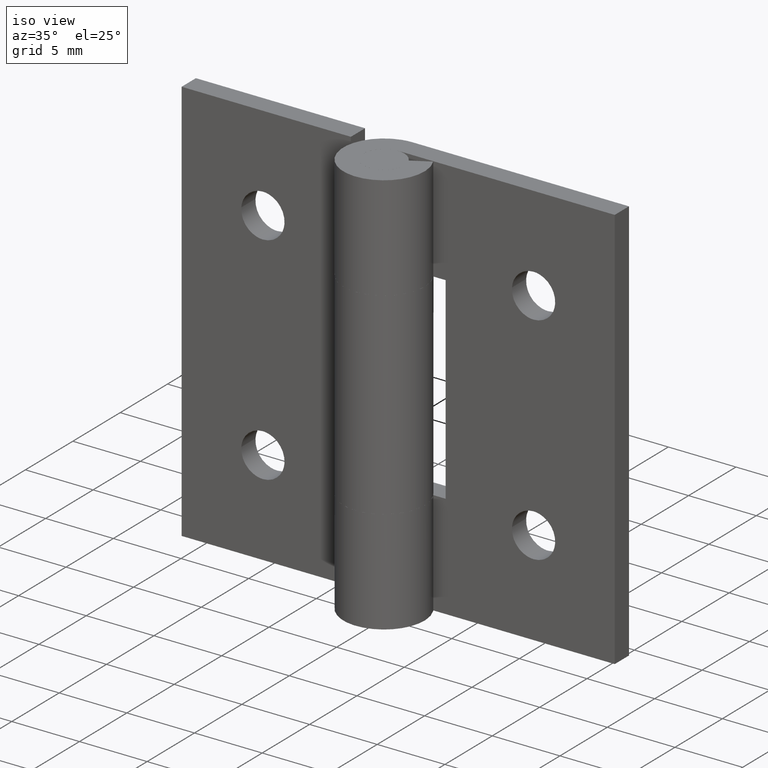
[diagram: clean part render]
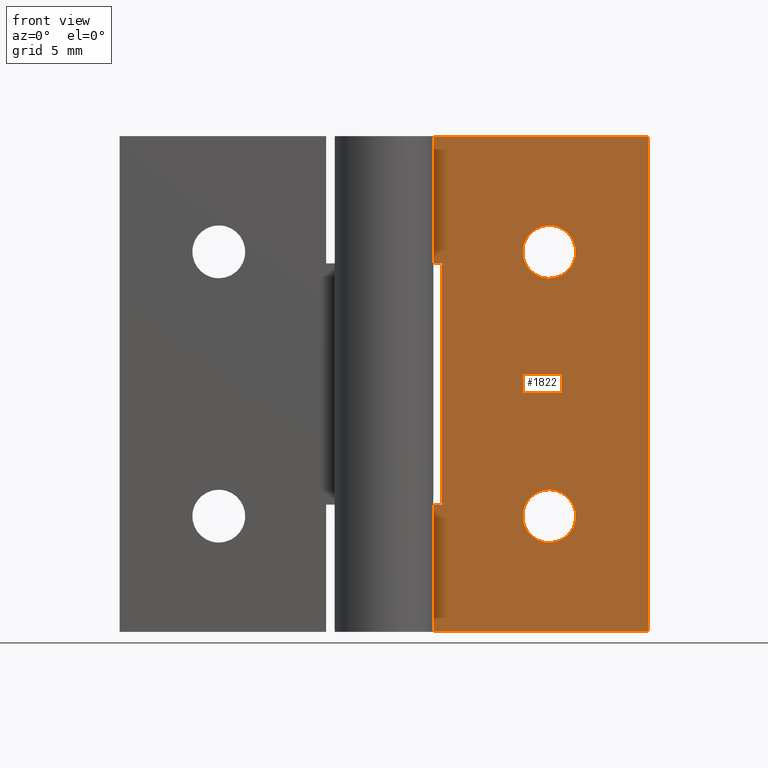
[diagram: tour spotlight — one face highlighted and labeled with its STEP entity id]
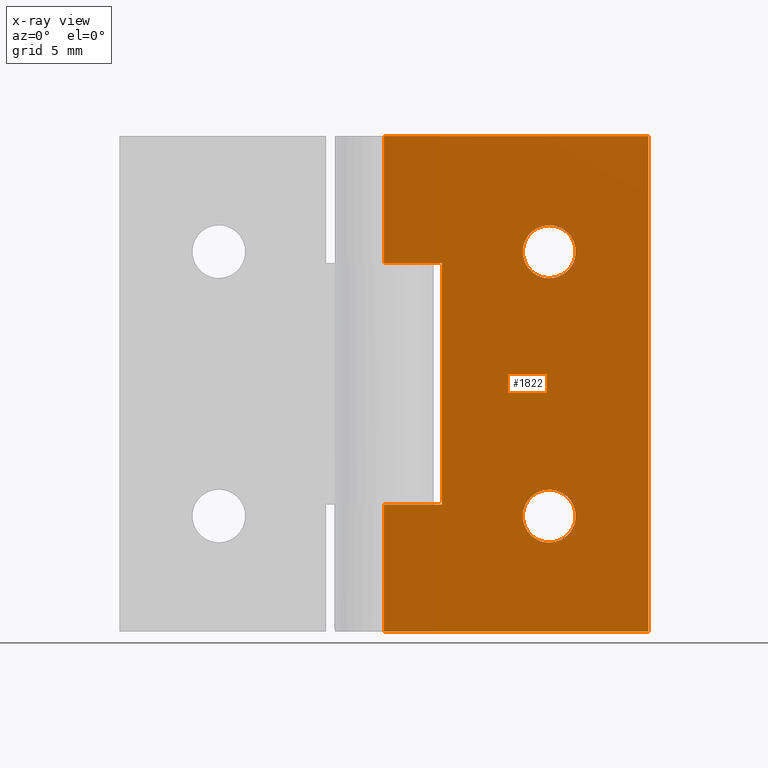
[diagram: x-ray of the same camera — body ghosted, this tour face saturated]
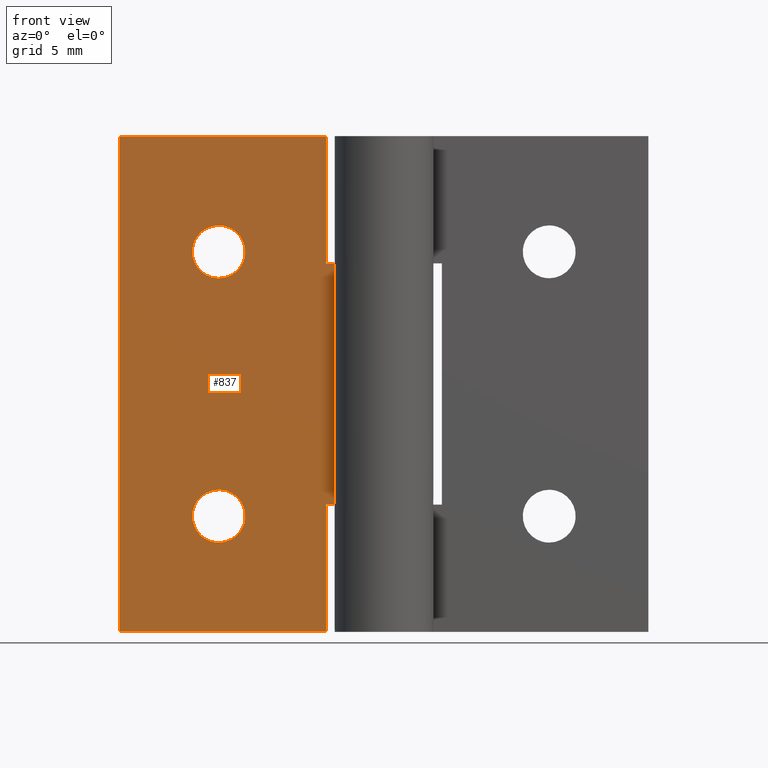
[diagram: tour spotlight — one face highlighted and labeled with its STEP entity id]
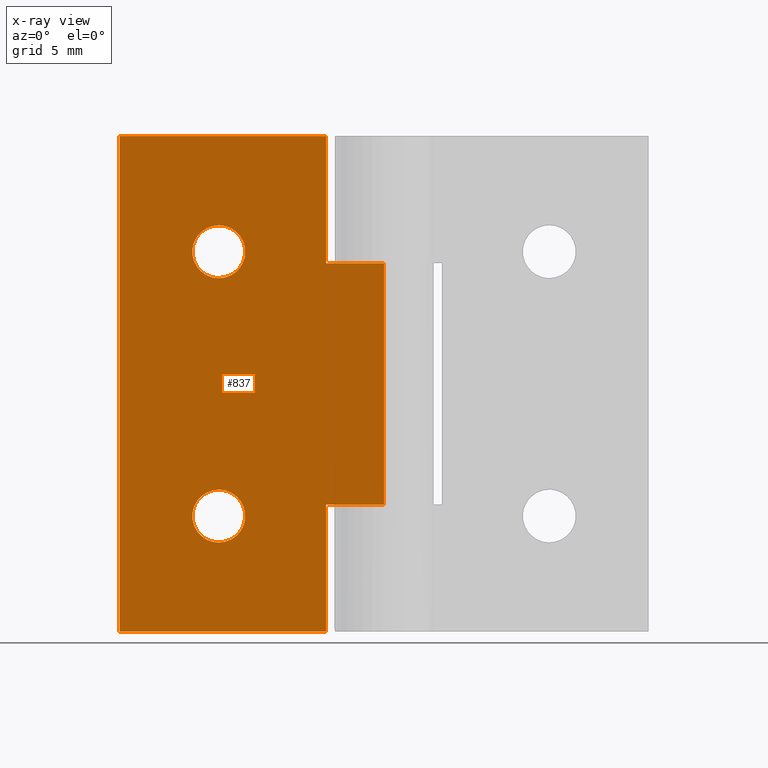
[diagram: x-ray of the same camera — body ghosted, this tour face saturated]
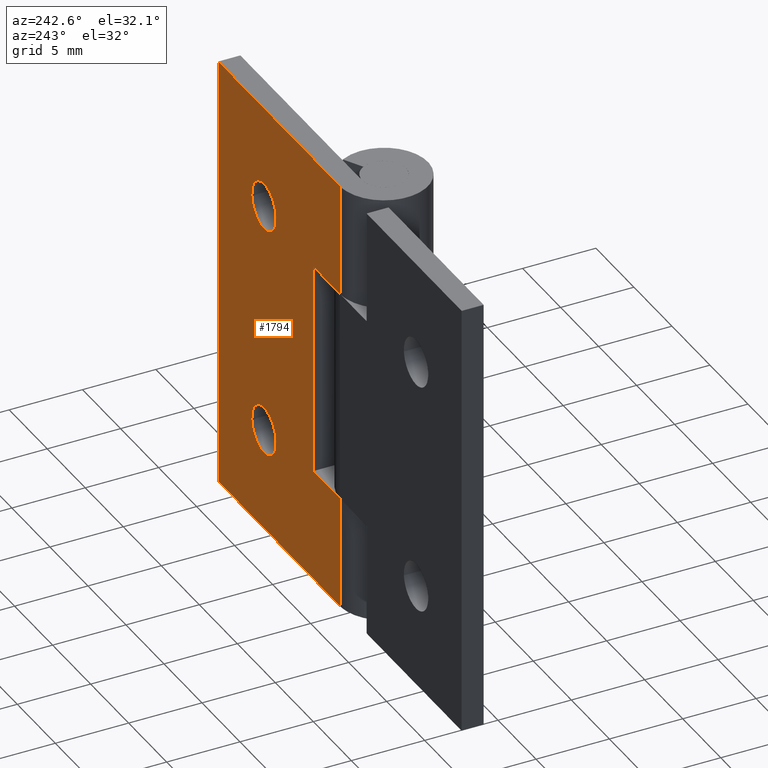
[diagram: tour spotlight — one face highlighted and labeled with its STEP entity id]
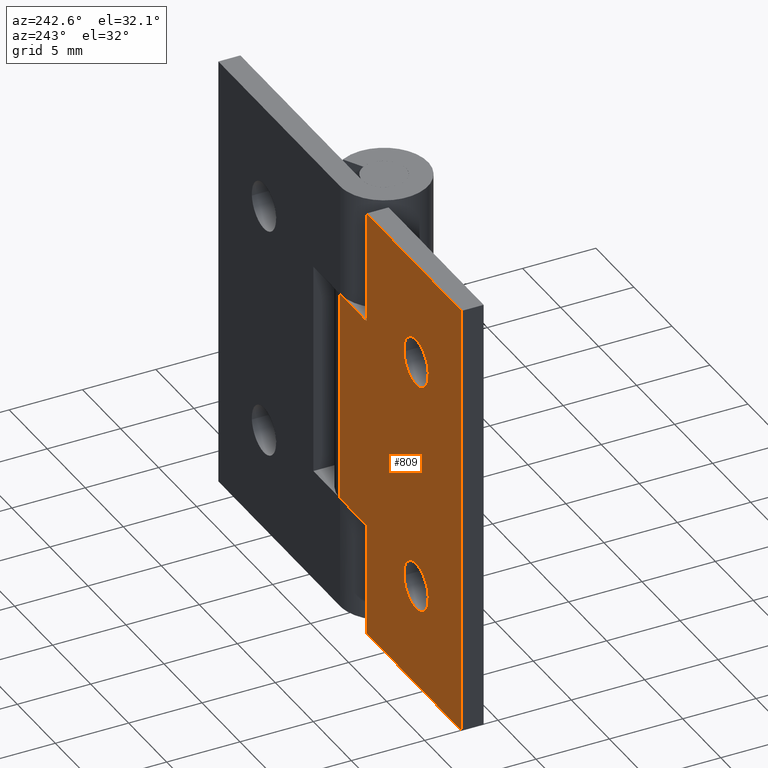
[diagram: tour spotlight — one face highlighted and labeled with its STEP entity id]
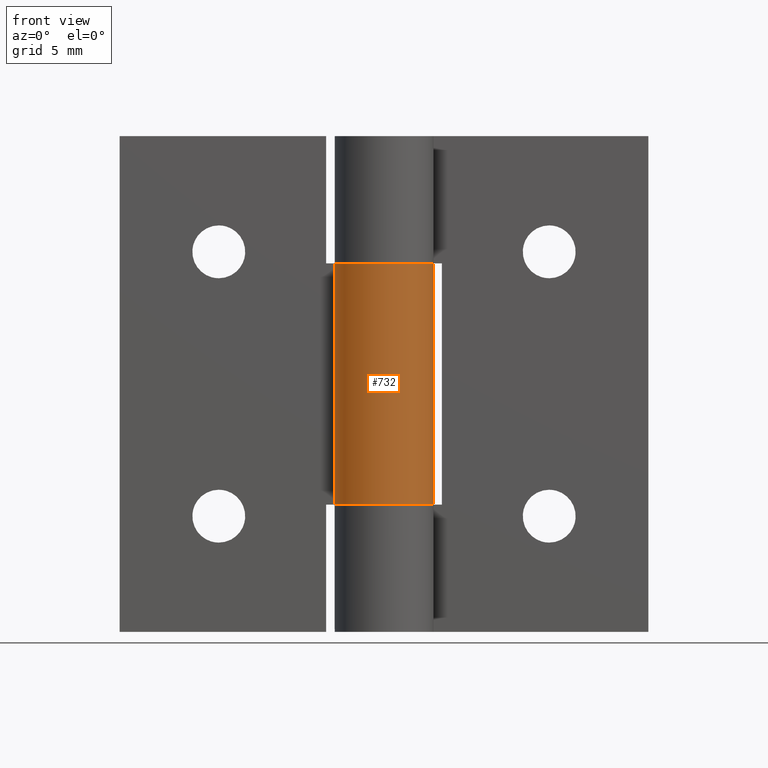
[diagram: tour spotlight — one face highlighted and labeled with its STEP entity id]
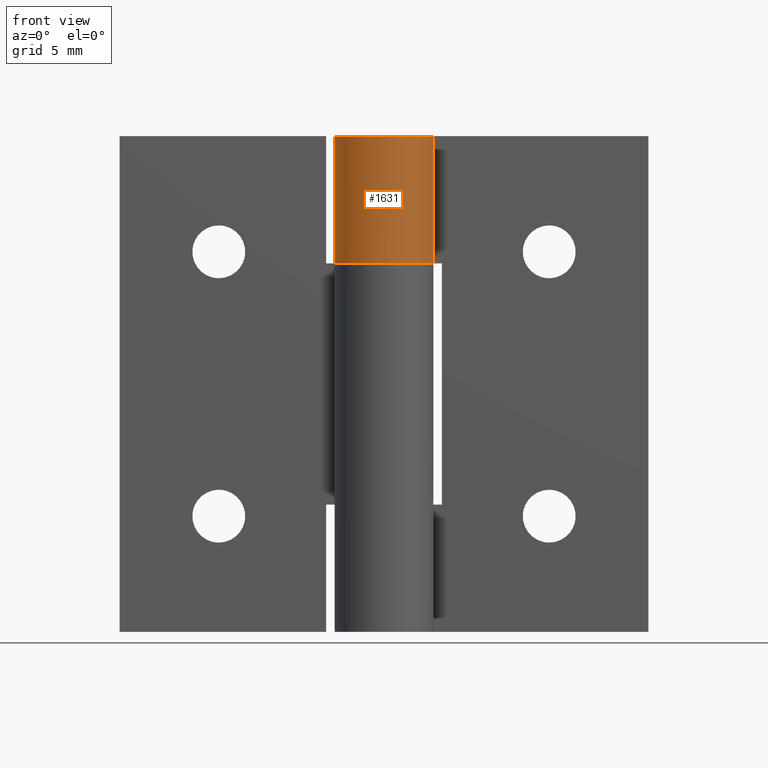
[diagram: tour spotlight — one face highlighted and labeled with its STEP entity id]
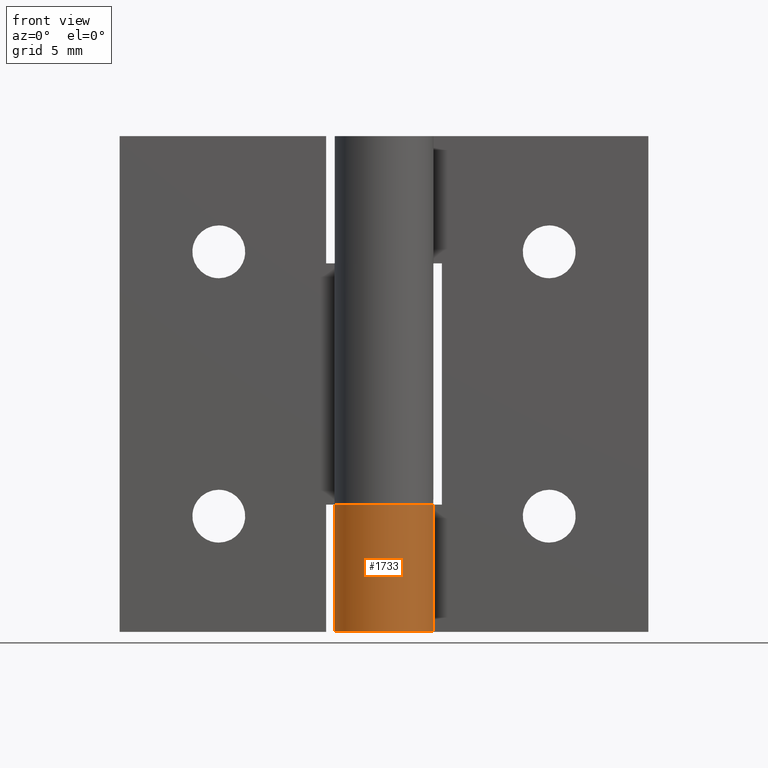
[diagram: tour spotlight — one face highlighted and labeled with its STEP entity id]
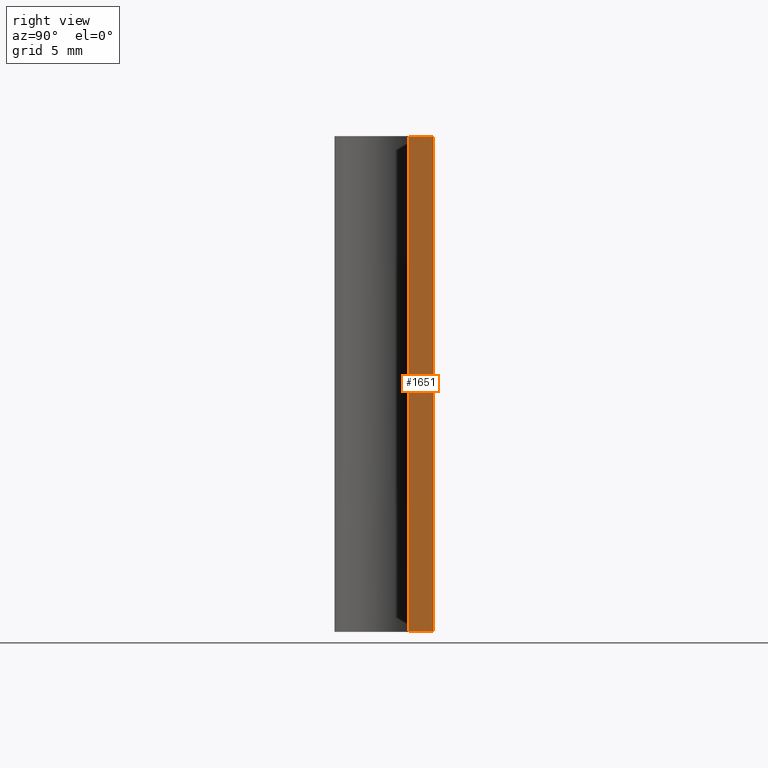
[diagram: tour spotlight — one face highlighted and labeled with its STEP entity id]
A machine part: a face-by-face anatomy tour. The part has 38 B-rep faces; the first image is the clean iso view, then the 8 largest visible faces are spotlighted one at a time (largest first), each with its STEP entity span.

Face 1 — front view, entity #1822. An x-ray twin of the same camera follows (body ghosted, this face saturated) — the face is partly hidden behind the body. In plain terms, the highlighted face is a freeform B-spline surface patch.
Definition (entity closure, byte-faithful):
#931=CARTESIAN_POINT('',(11.595067733968280,1.499999999999946,22.874465446775389));
#932=VERTEX_POINT('',#931);
#938=CARTESIAN_POINT('',(10.0,1.499999999999946,24.600000000000001));
#939=VERTEX_POINT('',#938);
#940=CARTESIAN_POINT('',(11.595067733968280,1.499999999999945,22.874465446775385));
#941=CARTESIAN_POINT('',(11.600000000000009,1.499999999999946,22.937135828727396));
#942=CARTESIAN_POINT('',(11.600000000000000,1.499999999999946,23.0));
#943=CARTESIAN_POINT('',(11.600000000000001,1.499999999999946,24.600000000000001));
#944=CARTESIAN_POINT('',(10.0,1.499999999999946,24.600000000000001));
#952=(BOUNDED_CURVE()B_SPLINE_CURVE(2,(#940,#941,#942,#943,#944),.UNSPECIFIED.,.F.,.U.)B_SPLINE_CURVE_WITH_KNOTS((3,2,3),(0.736331300619857,0.750000000000000,1.0),.UNSPECIFIED.)CURVE()GEOMETRIC_REPRESENTATION_ITEM()RATIONAL_B_SPLINE_CURVE((0.969723356144874,0.983986122566226,1.0,0.707106781186548,1.0))REPRESENTATION_ITEM(''));
#953=EDGE_CURVE('',#932,#939,#952,.T.);
#955=CARTESIAN_POINT('',(8.404932266031722,1.499999999999946,23.125534553224611));
#956=VERTEX_POINT('',#955);
#957=CARTESIAN_POINT('',(10.0,1.499999999999946,24.600000000000001));
#958=CARTESIAN_POINT('',(8.520975213458595,1.499999999999946,24.600000000000009));
#959=CARTESIAN_POINT('',(8.404932266031722,1.499999999999946,23.125534553224607));
#967=(BOUNDED_CURVE()B_SPLINE_CURVE(2,(#957,#958,#959),.UNSPECIFIED.,.F.,.U.)B_SPLINE_CURVE_WITH_KNOTS((3,3),(0.0,0.236331300619857),.UNSPECIFIED.)CURVE()GEOMETRIC_REPRESENTATION_ITEM()RATIONAL_B_SPLINE_CURVE((1.0,0.723120658620321,0.969723356144874))REPRESENTATION_ITEM(''));
#968=EDGE_CURVE('',#939,#956,#967,.T.);
#1014=CARTESIAN_POINT('',(10.0,1.499999999999946,21.399999999999999));
#1015=VERTEX_POINT('',#1014);
#1016=CARTESIAN_POINT('',(8.404932266031722,1.499999999999946,23.125534553224611));
#1017=CARTESIAN_POINT('',(8.400000000000000,1.499999999999946,23.062864171272615));
#1018=CARTESIAN_POINT('',(8.400000000000000,1.499999999999946,23.0));
#1019=CARTESIAN_POINT('',(8.400000000000000,1.499999999999946,21.400000000000002));
#1020=CARTESIAN_POINT('',(10.0,1.499999999999946,21.399999999999999));
#1028=(BOUNDED_CURVE()B_SPLINE_CURVE(2,(#1016,#1017,#1018,#1019,#1020),.UNSPECIFIED.,.F.,.U.)B_SPLINE_CURVE_WITH_KNOTS((3,2,3),(0.236331300619857,0.250000000000000,0.500000000000000),.UNSPECIFIED.)CURVE()GEOMETRIC_REPRESENTATION_ITEM()RATIONAL_B_SPLINE_CURVE((0.969723356144874,0.983986122566226,1.0,0.707106781186548,1.0))REPRESENTATION_ITEM(''));
#1029=EDGE_CURVE('',#956,#1015,#1028,.T.);
#1031=CARTESIAN_POINT('',(10.0,1.499999999999946,21.399999999999999));
#1032=CARTESIAN_POINT('',(11.479024786541398,1.499999999999947,21.400000000000002));
#1033=CARTESIAN_POINT('',(11.595067733968280,1.499999999999946,22.874465446775385));
#1041=(BOUNDED_CURVE()B_SPLINE_CURVE(2,(#1031,#1032,#1033),.UNSPECIFIED.,.F.,.U.)B_SPLINE_CURVE_WITH_KNOTS((3,3),(0.500000000000000,0.736331300619856),.UNSPECIFIED.)CURVE()GEOMETRIC_REPRESENTATION_ITEM()RATIONAL_B_SPLINE_CURVE((1.0,0.723120658620322,0.969723356144872))REPRESENTATION_ITEM(''));
#1042=EDGE_CURVE('',#1015,#932,#1041,.T.);
#1113=CARTESIAN_POINT('',(11.595067733968280,1.499999999999946,6.874465446775385));
#1114=VERTEX_POINT('',#1113);
#1120=CARTESIAN_POINT('',(10.0,1.499999999999946,8.600000000000000));
#1121=VERTEX_POINT('',#1120);
#1122=CARTESIAN_POINT('',(11.595067733968282,1.499999999999946,6.874465446775385));
#1123=CARTESIAN_POINT('',(11.600000000000001,1.499999999999946,6.937135828727386));
#1124=CARTESIAN_POINT('',(11.600000000000000,1.499999999999946,7.0));
#1125=CARTESIAN_POINT('',(11.600000000000001,1.499999999999946,8.600000000000000));
#1126=CARTESIAN_POINT('',(10.0,1.499999999999946,8.600000000000000));
#1134=(BOUNDED_CURVE()B_SPLINE_CURVE(2,(#1122,#1123,#1124,#1125,#1126),.UNSPECIFIED.,.F.,.U.)B_SPLINE_CURVE_WITH_KNOTS((3,2,3),(0.736331300619857,0.750000000000000,1.0),.UNSPECIFIED.)CURVE()GEOMETRIC_REPRESENTATION_ITEM()RATIONAL_B_SPLINE_CURVE((0.969723356144873,0.983986122566226,1.0,0.707106781186548,1.0))REPRESENTATION_ITEM(''));
#1135=EDGE_CURVE('',#1114,#1121,#1134,.T.);
#1137=CARTESIAN_POINT('',(8.404932266031723,1.499999999999946,7.125534553224615));
#1138=VERTEX_POINT('',#1137);
#1139=CARTESIAN_POINT('',(10.0,1.499999999999946,8.600000000000000));
#1140=CARTESIAN_POINT('',(8.520975213458598,1.499999999999947,8.600000000000001));
#1141=CARTESIAN_POINT('',(8.404932266031723,1.499999999999946,7.125534553224615));
#1149=(BOUNDED_CURVE()B_SPLINE_CURVE(2,(#1139,#1140,#1141),.UNSPECIFIED.,.F.,.U.)B_SPLINE_CURVE_WITH_KNOTS((3,3),(0.0,0.236331300619857),.UNSPECIFIED.)CURVE()GEOMETRIC_REPRESENTATION_ITEM()RATIONAL_B_SPLINE_CURVE((1.0,0.723120658620322,0.969723356144873))REPRESENTATION_ITEM(''));
#1150=EDGE_CURVE('',#1121,#1138,#1149,.T.);
#1196=CARTESIAN_POINT('',(10.0,1.499999999999946,5.400000000000000));
#1197=VERTEX_POINT('',#1196);
#1198=CARTESIAN_POINT('',(8.404932266031723,1.499999999999946,7.125534553224615));
#1199=CARTESIAN_POINT('',(8.400000000000000,1.499999999999947,7.062864171272613));
#1200=CARTESIAN_POINT('',(8.400000000000000,1.499999999999946,7.0));
#1201=CARTESIAN_POINT('',(8.400000000000000,1.499999999999946,5.400000000000000));
#1202=CARTESIAN_POINT('',(10.0,1.499999999999946,5.400000000000000));
#1210=(BOUNDED_CURVE()B_SPLINE_CURVE(2,(#1198,#1199,#1200,#1201,#1202),.UNSPECIFIED.,.F.,.U.)B_SPLINE_CURVE_WITH_KNOTS((3,2,3),(0.236331300619857,0.250000000000000,0.500000000000000),.UNSPECIFIED.)CURVE()GEOMETRIC_REPRESENTATION_ITEM()RATIONAL_B_SPLINE_CURVE((0.969723356144873,0.983986122566226,1.0,0.707106781186548,1.0))REPRESENTATION_ITEM(''));
#1211=EDGE_CURVE('',#1138,#1197,#1210,.T.);
#1213=CARTESIAN_POINT('',(10.0,1.499999999999946,5.400000000000000));
#1214=CARTESIAN_POINT('',(11.479024786541398,1.499999999999947,5.400000000000000));
#1215=CARTESIAN_POINT('',(11.595067733968280,1.499999999999946,6.874465446775385));
#1223=(BOUNDED_CURVE()B_SPLINE_CURVE(2,(#1213,#1214,#1215),.UNSPECIFIED.,.F.,.U.)B_SPLINE_CURVE_WITH_KNOTS((3,3),(0.500000000000000,0.736331300619856),.UNSPECIFIED.)CURVE()GEOMETRIC_REPRESENTATION_ITEM()RATIONAL_B_SPLINE_CURVE((1.0,0.723120658620322,0.969723356144872))REPRESENTATION_ITEM(''));
#1224=EDGE_CURVE('',#1197,#1114,#1223,.T.);
#1248=CARTESIAN_POINT('',(3.499999999999901,1.499999999999946,7.699996999999900));
#1249=VERTEX_POINT('',#1248);
#1292=CARTESIAN_POINT('',(0.0,1.500000000000000,7.699996999999900));
#1293=VERTEX_POINT('',#1292);
#1313=CARTESIAN_POINT('',(3.499999999999901,1.499999999999946,7.699996999999900));
#1314=CARTESIAN_POINT('',(0.0,1.500000000000000,7.699996999999900));
#1315=QUASI_UNIFORM_CURVE('',1,(#1313,#1314),.UNSPECIFIED.,.F.,.U.);
#1316=EDGE_CURVE('',#1249,#1293,#1315,.T.);
#1328=CARTESIAN_POINT('',(0.0,1.500000000000000,22.300002999999801));
#1329=VERTEX_POINT('',#1328);
#1384=CARTESIAN_POINT('',(3.499999999999901,1.499999999999946,22.300002999999801));
#1385=VERTEX_POINT('',#1384);
#1391=CARTESIAN_POINT('',(0.0,1.500000000000000,22.300002999999801));
#1392=CARTESIAN_POINT('',(3.499999999999901,1.499999999999946,22.300002999999801));
#1393=QUASI_UNIFORM_CURVE('',1,(#1391,#1392),.UNSPECIFIED.,.F.,.U.);
#1394=EDGE_CURVE('',#1329,#1385,#1393,.T.);
#1411=CARTESIAN_POINT('',(3.499999999999901,1.499999999999946,22.300002999999801));
#1412=CARTESIAN_POINT('',(3.499999999999901,1.499999999999946,7.699996999999900));
#1413=QUASI_UNIFORM_CURVE('',1,(#1411,#1412),.UNSPECIFIED.,.F.,.U.);
#1414=EDGE_CURVE('',#1385,#1249,#1413,.T.);
#1426=CARTESIAN_POINT('',(0.0,1.500000000000000,0.0));
#1427=VERTEX_POINT('',#1426);
#1482=CARTESIAN_POINT('',(16.0,1.500000000000000,0.0));
#1483=VERTEX_POINT('',#1482);
#1489=CARTESIAN_POINT('',(0.0,1.500000000000000,0.0));
#1490=CARTESIAN_POINT('',(16.0,1.500000000000000,0.0));
#1491=QUASI_UNIFORM_CURVE('',1,(#1489,#1490),.UNSPECIFIED.,.F.,.U.);
#1492=EDGE_CURVE('',#1427,#1483,#1491,.T.);
#1504=CARTESIAN_POINT('',(0.0,1.500000000000000,30.0));
#1505=VERTEX_POINT('',#1504);
#1525=CARTESIAN_POINT('',(16.0,1.500000000000000,30.0));
#1526=VERTEX_POINT('',#1525);
#1527=CARTESIAN_POINT('',(0.0,1.500000000000000,30.0));
#1528=CARTESIAN_POINT('',(16.0,1.500000000000000,30.0));
#1529=QUASI_UNIFORM_CURVE('',1,(#1527,#1528),.UNSPECIFIED.,.F.,.U.);
#1530=EDGE_CURVE('',#1505,#1526,#1529,.T.);
#1644=CARTESIAN_POINT('',(16.0,1.500000000000000,30.0));
#1645=CARTESIAN_POINT('',(16.0,1.500000000000000,0.0));
#1646=QUASI_UNIFORM_CURVE('',1,(#1644,#1645),.UNSPECIFIED.,.F.,.U.);
#1647=EDGE_CURVE('',#1526,#1483,#1646,.T.);
#1674=CARTESIAN_POINT('',(0.0,1.500000000000000,7.699996999999900));
#1675=CARTESIAN_POINT('',(0.0,1.500000000000000,0.0));
#1676=QUASI_UNIFORM_CURVE('',1,(#1674,#1675),.UNSPECIFIED.,.F.,.U.);
#1677=EDGE_CURVE('',#1293,#1427,#1676,.T.);
#1758=CARTESIAN_POINT('',(0.0,1.500000000000000,30.0));
#1759=CARTESIAN_POINT('',(0.0,1.500000000000000,22.300002999999801));
#1760=QUASI_UNIFORM_CURVE('',1,(#1758,#1759),.UNSPECIFIED.,.F.,.U.);
#1761=EDGE_CURVE('',#1505,#1329,#1760,.T.);
#1795=CARTESIAN_POINT('',(-0.799199968988895,1.500000000000000,-1.498499941854179));
#1796=CARTESIAN_POINT('',(-0.799199968988895,1.500000000000000,31.498500746516889));
#1797=CARTESIAN_POINT('',(16.799200398142339,1.500000000000000,-1.498499941854179));
#1798=CARTESIAN_POINT('',(16.799200398142339,1.500000000000000,31.498500746516889));
#1799=B_SPLINE_SURFACE_WITH_KNOTS('',1,1,((#1795,#1797),(#1796,#1798)),.UNSPECIFIED.,.F.,.F.,.U.,(2,2),(2,2),(0.0,32.997000688371067),(0.0,17.598400367131230),.UNSPECIFIED.);
#1800=ORIENTED_EDGE('',*,*,#1761,.T.);
#1801=ORIENTED_EDGE('',*,*,#1394,.T.);
#1802=ORIENTED_EDGE('',*,*,#1414,.T.);
#1803=ORIENTED_EDGE('',*,*,#1316,.T.);
#1804=ORIENTED_EDGE('',*,*,#1677,.T.);
#1805=ORIENTED_EDGE('',*,*,#1492,.T.);
#1806=ORIENTED_EDGE('',*,*,#1647,.F.);
#1807=ORIENTED_EDGE('',*,*,#1530,.F.);
#1808=EDGE_LOOP('',(#1800,#1801,#1802,#1803,#1804,#1805,#1806,#1807));
#1809=FACE_OUTER_BOUND('',#1808,.T.);
#1810=ORIENTED_EDGE('',*,*,#1224,.F.);
#1811=ORIENTED_EDGE('',*,*,#1211,.F.);
#1812=ORIENTED_EDGE('',*,*,#1150,.F.);
#1813=ORIENTED_EDGE('',*,*,#1135,.F.);
#1814=EDGE_LOOP('',(#1810,#1811,#1812,#1813));
#1815=FACE_BOUND('',#1814,.T.);
#1816=ORIENTED_EDGE('',*,*,#1042,.F.);
#1817=ORIENTED_EDGE('',*,*,#1029,.F.);
#1818=ORIENTED_EDGE('',*,*,#968,.F.);
#1819=ORIENTED_EDGE('',*,*,#953,.F.);
#1820=EDGE_LOOP('',(#1816,#1817,#1818,#1819));
#1821=FACE_BOUND('',#1820,.T.);
#1822=ADVANCED_FACE('',(#1809,#1815,#1821),#1799,.F.);

Face 2 — front view, entity #837. An x-ray twin of the same camera follows (body ghosted, this face saturated) — the face is partly hidden behind the body. In plain terms, the highlighted face is a freeform B-spline surface patch.
Definition (entity closure, byte-faithful):
#96=CARTESIAN_POINT('',(-8.404932266031723,1.499999999999946,22.874465446775389));
#97=VERTEX_POINT('',#96);
#103=CARTESIAN_POINT('',(-10.0,1.499999999999946,24.600000000000001));
#104=VERTEX_POINT('',#103);
#105=CARTESIAN_POINT('',(-8.404932266031723,1.499999999999946,22.874465446775389));
#106=CARTESIAN_POINT('',(-8.400000000000000,1.499999999999946,22.937135828727389));
#107=CARTESIAN_POINT('',(-8.400000000000000,1.499999999999946,23.0));
#108=CARTESIAN_POINT('',(-8.400000000000000,1.499999999999946,24.600000000000001));
#109=CARTESIAN_POINT('',(-10.0,1.499999999999946,24.600000000000001));
#117=(BOUNDED_CURVE()B_SPLINE_CURVE(2,(#105,#106,#107,#108,#109),.UNSPECIFIED.,.F.,.U.)B_SPLINE_CURVE_WITH_KNOTS((3,2,3),(0.736331300619857,0.750000000000000,1.0),.UNSPECIFIED.)CURVE()GEOMETRIC_REPRESENTATION_ITEM()RATIONAL_B_SPLINE_CURVE((0.969723356144874,0.983986122566226,1.0,0.707106781186548,1.0))REPRESENTATION_ITEM(''));
#118=EDGE_CURVE('',#97,#104,#117,.T.);
#120=CARTESIAN_POINT('',(-11.595067733968280,1.499999999999946,23.125534553224611));
#121=VERTEX_POINT('',#120);
#122=CARTESIAN_POINT('',(-10.0,1.499999999999946,24.600000000000001));
#123=CARTESIAN_POINT('',(-11.479024786541403,1.499999999999947,24.600000000000009));
#124=CARTESIAN_POINT('',(-11.595067733968277,1.499999999999946,23.125534553224615));
#132=(BOUNDED_CURVE()B_SPLINE_CURVE(2,(#122,#123,#124),.UNSPECIFIED.,.F.,.U.)B_SPLINE_CURVE_WITH_KNOTS((3,3),(0.0,0.236331300619857),.UNSPECIFIED.)CURVE()GEOMETRIC_REPRESENTATION_ITEM()RATIONAL_B_SPLINE_CURVE((1.0,0.723120658620322,0.969723356144873))REPRESENTATION_ITEM(''));
#133=EDGE_CURVE('',#104,#121,#132,.T.);
#179=CARTESIAN_POINT('',(-10.0,1.499999999999946,21.399999999999999));
#180=VERTEX_POINT('',#179);
#181=CARTESIAN_POINT('',(-11.595067733968280,1.499999999999946,23.125534553224611));
#182=CARTESIAN_POINT('',(-11.600000000000001,1.499999999999947,23.062864171272615));
#183=CARTESIAN_POINT('',(-11.600000000000000,1.499999999999946,23.0));
#184=CARTESIAN_POINT('',(-11.600000000000001,1.499999999999946,21.400000000000002));
#185=CARTESIAN_POINT('',(-10.0,1.499999999999946,21.399999999999999));
#193=(BOUNDED_CURVE()B_SPLINE_CURVE(2,(#181,#182,#183,#184,#185),.UNSPECIFIED.,.F.,.U.)B_SPLINE_CURVE_WITH_KNOTS((3,2,3),(0.236331300619857,0.250000000000000,0.500000000000000),.UNSPECIFIED.)CURVE()GEOMETRIC_REPRESENTATION_ITEM()RATIONAL_B_SPLINE_CURVE((0.969723356144873,0.983986122566226,1.0,0.707106781186548,1.0))REPRESENTATION_ITEM(''));
#194=EDGE_CURVE('',#121,#180,#193,.T.);
#196=CARTESIAN_POINT('',(-10.0,1.499999999999946,21.399999999999999));
#197=CARTESIAN_POINT('',(-8.520975213458604,1.499999999999947,21.400000000000002));
#198=CARTESIAN_POINT('',(-8.404932266031723,1.499999999999946,22.874465446775385));
#206=(BOUNDED_CURVE()B_SPLINE_CURVE(2,(#196,#197,#198),.UNSPECIFIED.,.F.,.U.)B_SPLINE_CURVE_WITH_KNOTS((3,3),(0.500000000000000,0.736331300619856),.UNSPECIFIED.)CURVE()GEOMETRIC_REPRESENTATION_ITEM()RATIONAL_B_SPLINE_CURVE((1.0,0.723120658620322,0.969723356144872))REPRESENTATION_ITEM(''));
#207=EDGE_CURVE('',#180,#97,#206,.T.);
#278=CARTESIAN_POINT('',(-8.404932266031723,1.499999999999946,6.874465446775385));
#279=VERTEX_POINT('',#278);
#285=CARTESIAN_POINT('',(-10.0,1.499999999999946,8.600000000000000));
#286=VERTEX_POINT('',#285);
#287=CARTESIAN_POINT('',(-8.404932266031723,1.499999999999946,6.874465446775385));
#288=CARTESIAN_POINT('',(-8.400000000000000,1.499999999999946,6.937135828727388));
#289=CARTESIAN_POINT('',(-8.400000000000000,1.499999999999946,7.0));
#290=CARTESIAN_POINT('',(-8.400000000000000,1.499999999999946,8.600000000000000));
#291=CARTESIAN_POINT('',(-10.0,1.499999999999946,8.600000000000000));
#299=(BOUNDED_CURVE()B_SPLINE_CURVE(2,(#287,#288,#289,#290,#291),.UNSPECIFIED.,.F.,.U.)B_SPLINE_CURVE_WITH_KNOTS((3,2,3),(0.736331300619857,0.750000000000000,1.0),.UNSPECIFIED.)CURVE()GEOMETRIC_REPRESENTATION_ITEM()RATIONAL_B_SPLINE_CURVE((0.969723356144873,0.983986122566226,1.0,0.707106781186548,1.0))REPRESENTATION_ITEM(''));
#300=EDGE_CURVE('',#279,#286,#299,.T.);
#302=CARTESIAN_POINT('',(-11.595067733968280,1.499999999999946,7.125534553224615));
#303=VERTEX_POINT('',#302);
#304=CARTESIAN_POINT('',(-10.0,1.499999999999946,8.600000000000000));
#305=CARTESIAN_POINT('',(-11.479024786541403,1.499999999999947,8.600000000000001));
#306=CARTESIAN_POINT('',(-11.595067733968277,1.499999999999946,7.125534553224615));
#314=(BOUNDED_CURVE()B_SPLINE_CURVE(2,(#304,#305,#306),.UNSPECIFIED.,.F.,.U.)B_SPLINE_CURVE_WITH_KNOTS((3,3),(0.0,0.236331300619857),.UNSPECIFIED.)CURVE()GEOMETRIC_REPRESENTATION_ITEM()RATIONAL_B_SPLINE_CURVE((1.0,0.723120658620322,0.969723356144873))REPRESENTATION_ITEM(''));
#315=EDGE_CURVE('',#286,#303,#314,.T.);
#361=CARTESIAN_POINT('',(-10.0,1.499999999999946,5.400000000000000));
#362=VERTEX_POINT('',#361);
#363=CARTESIAN_POINT('',(-11.595067733968277,1.499999999999946,7.125534553224615));
#364=CARTESIAN_POINT('',(-11.600000000000000,1.499999999999946,7.062864171272612));
#365=CARTESIAN_POINT('',(-11.600000000000000,1.499999999999946,7.0));
#366=CARTESIAN_POINT('',(-11.600000000000001,1.499999999999946,5.400000000000000));
#367=CARTESIAN_POINT('',(-10.0,1.499999999999946,5.400000000000000));
#375=(BOUNDED_CURVE()B_SPLINE_CURVE(2,(#363,#364,#365,#366,#367),.UNSPECIFIED.,.F.,.U.)B_SPLINE_CURVE_WITH_KNOTS((3,2,3),(0.236331300619857,0.250000000000000,0.500000000000000),.UNSPECIFIED.)CURVE()GEOMETRIC_REPRESENTATION_ITEM()RATIONAL_B_SPLINE_CURVE((0.969723356144873,0.983986122566226,1.0,0.707106781186548,1.0))REPRESENTATION_ITEM(''));
#376=EDGE_CURVE('',#303,#362,#375,.T.);
#378=CARTESIAN_POINT('',(-10.0,1.499999999999946,5.400000000000000));
#379=CARTESIAN_POINT('',(-8.520975213458604,1.499999999999947,5.400000000000000));
#380=CARTESIAN_POINT('',(-8.404932266031723,1.499999999999946,6.874465446775385));
#388=(BOUNDED_CURVE()B_SPLINE_CURVE(2,(#378,#379,#380),.UNSPECIFIED.,.F.,.U.)B_SPLINE_CURVE_WITH_KNOTS((3,3),(0.500000000000000,0.736331300619856),.UNSPECIFIED.)CURVE()GEOMETRIC_REPRESENTATION_ITEM()RATIONAL_B_SPLINE_CURVE((1.0,0.723120658620322,0.969723356144872))REPRESENTATION_ITEM(''));
#389=EDGE_CURVE('',#362,#279,#388,.T.);
#413=CARTESIAN_POINT('',(-3.500000000000100,1.499999999999946,7.699997000000190));
#414=VERTEX_POINT('',#413);
#415=CARTESIAN_POINT('',(-3.500000000000100,1.500000000000000,0.0));
#416=VERTEX_POINT('',#415);
#417=CARTESIAN_POINT('',(-3.500000000000100,1.499999999999946,7.699997000000190));
#418=CARTESIAN_POINT('',(-3.500000000000100,1.500000000000000,0.0));
#419=QUASI_UNIFORM_CURVE('',1,(#417,#418),.UNSPECIFIED.,.F.,.U.);
#420=EDGE_CURVE('',#414,#416,#419,.T.);
#449=CARTESIAN_POINT('',(-2.755364E-016,1.500000000000000,7.699997000000241));
#450=VERTEX_POINT('',#449);
#451=CARTESIAN_POINT('',(-2.755364E-016,1.500000000000000,7.699997000000241));
#452=CARTESIAN_POINT('',(-3.500000000000100,1.499999999999946,7.699997000000190));
#453=QUASI_UNIFORM_CURVE('',1,(#451,#452),.UNSPECIFIED.,.F.,.U.);
#454=EDGE_CURVE('',#450,#414,#453,.T.);
#519=CARTESIAN_POINT('',(-3.500000000000100,1.499999999999946,30.0));
#520=VERTEX_POINT('',#519);
#521=CARTESIAN_POINT('',(-3.500000000000100,1.499999999999946,22.300002999999801));
#522=VERTEX_POINT('',#521);
#523=CARTESIAN_POINT('',(-3.500000000000100,1.499999999999946,30.0));
#524=CARTESIAN_POINT('',(-3.500000000000100,1.499999999999946,22.300002999999801));
#525=QUASI_UNIFORM_CURVE('',1,(#523,#524),.UNSPECIFIED.,.F.,.U.);
#526=EDGE_CURVE('',#520,#522,#525,.T.);
#555=CARTESIAN_POINT('',(-2.755364E-016,1.500000000000000,22.300002999999801));
#556=VERTEX_POINT('',#555);
#557=CARTESIAN_POINT('',(-3.500000000000100,1.499999999999946,22.300002999999801));
#558=CARTESIAN_POINT('',(-2.755364E-016,1.500000000000000,22.300002999999801));
#559=QUASI_UNIFORM_CURVE('',1,(#557,#558),.UNSPECIFIED.,.F.,.U.);
#560=EDGE_CURVE('',#522,#556,#559,.T.);
#627=CARTESIAN_POINT('',(-16.0,1.500000000000000,0.0));
#628=VERTEX_POINT('',#627);
#634=CARTESIAN_POINT('',(-16.0,1.500000000000000,30.0));
#635=VERTEX_POINT('',#634);
#636=CARTESIAN_POINT('',(-16.0,1.500000000000000,30.0));
#637=CARTESIAN_POINT('',(-16.0,1.500000000000000,0.0));
#638=QUASI_UNIFORM_CURVE('',1,(#636,#637),.UNSPECIFIED.,.F.,.U.);
#639=EDGE_CURVE('',#635,#628,#638,.T.);
#668=CARTESIAN_POINT('',(-16.0,1.500000000000000,30.0));
#669=CARTESIAN_POINT('',(-3.500000000000100,1.499999999999946,30.0));
#670=QUASI_UNIFORM_CURVE('',1,(#668,#669),.UNSPECIFIED.,.F.,.U.);
#671=EDGE_CURVE('',#635,#520,#670,.T.);
#687=CARTESIAN_POINT('',(-16.0,1.500000000000000,0.0));
#688=CARTESIAN_POINT('',(-3.500000000000100,1.500000000000000,0.0));
#689=QUASI_UNIFORM_CURVE('',1,(#687,#688),.UNSPECIFIED.,.F.,.U.);
#690=EDGE_CURVE('',#628,#416,#689,.T.);
#774=CARTESIAN_POINT('',(-2.755364E-016,1.500000000000000,22.300002999999801));
#775=CARTESIAN_POINT('',(-2.755364E-016,1.500000000000000,7.699997000000241));
#776=QUASI_UNIFORM_CURVE('',1,(#774,#775),.UNSPECIFIED.,.F.,.U.);
#777=EDGE_CURVE('',#556,#450,#776,.T.);
#810=CARTESIAN_POINT('',(-16.799199968988891,1.500000000000000,-1.498499941854179));
#811=CARTESIAN_POINT('',(-16.799199968988891,1.500000000000000,31.498500746516889));
#812=CARTESIAN_POINT('',(0.799200398142338,1.500000000000000,-1.498499941854179));
#813=CARTESIAN_POINT('',(0.799200398142338,1.500000000000000,31.498500746516889));
#814=B_SPLINE_SURFACE_WITH_KNOTS('',1,1,((#810,#812),(#811,#813)),.UNSPECIFIED.,.F.,.F.,.U.,(2,2),(2,2),(0.0,32.997000688371067),(0.0,17.598400367131230),.UNSPECIFIED.);
#815=ORIENTED_EDGE('',*,*,#420,.F.);
#816=ORIENTED_EDGE('',*,*,#454,.F.);
#817=ORIENTED_EDGE('',*,*,#777,.F.);
#818=ORIENTED_EDGE('',*,*,#560,.F.);
#819=ORIENTED_EDGE('',*,*,#526,.F.);
#820=ORIENTED_EDGE('',*,*,#671,.F.);
#821=ORIENTED_EDGE('',*,*,#639,.T.);
#822=ORIENTED_EDGE('',*,*,#690,.T.);
#823=EDGE_LOOP('',(#815,#816,#817,#818,#819,#820,#821,#822));
#824=FACE_OUTER_BOUND('',#823,.T.);
#825=ORIENTED_EDGE('',*,*,#389,.F.);
#826=ORIENTED_EDGE('',*,*,#376,.F.);
#827=ORIENTED_EDGE('',*,*,#315,.F.);
#828=ORIENTED_EDGE('',*,*,#300,.F.);
#829=EDGE_LOOP('',(#825,#826,#827,#828));
#830=FACE_BOUND('',#829,.T.);
#831=ORIENTED_EDGE('',*,*,#207,.F.);
#832=ORIENTED_EDGE('',*,*,#194,.F.);
#833=ORIENTED_EDGE('',*,*,#133,.F.);
#834=ORIENTED_EDGE('',*,*,#118,.F.);
#835=EDGE_LOOP('',(#831,#832,#833,#834));
#836=FACE_BOUND('',#835,.T.);
#837=ADVANCED_FACE('',(#824,#830,#836),#814,.F.);

Face 3 — auxiliary view, entity #1794. In plain terms, the highlighted face is a freeform B-spline surface patch.
Definition (entity closure, byte-faithful):
#897=CARTESIAN_POINT('',(10.0,3.0,24.600000000000001));
#898=VERTEX_POINT('',#897);
#899=CARTESIAN_POINT('',(8.404932266031723,3.0,23.125534553224622));
#900=VERTEX_POINT('',#899);
#901=CARTESIAN_POINT('',(10.0,3.0,24.600000000000001));
#902=CARTESIAN_POINT('',(8.520975213458602,3.000000000000001,24.600000000000009));
#903=CARTESIAN_POINT('',(8.404932266031723,3.000000000000000,23.125534553224615));
#911=(BOUNDED_CURVE()B_SPLINE_CURVE(2,(#901,#902,#903),.UNSPECIFIED.,.F.,.U.)B_SPLINE_CURVE_WITH_KNOTS((3,3),(0.0,0.236331300619857),.UNSPECIFIED.)CURVE()GEOMETRIC_REPRESENTATION_ITEM()RATIONAL_B_SPLINE_CURVE((1.0,0.723120658620322,0.969723356144873))REPRESENTATION_ITEM(''));
#912=EDGE_CURVE('',#898,#900,#911,.T.);
#914=CARTESIAN_POINT('',(11.595067733968280,3.0,22.874465446775389));
#915=VERTEX_POINT('',#914);
#916=CARTESIAN_POINT('',(11.595067733968275,3.0,22.874465446775385));
#917=CARTESIAN_POINT('',(11.600000000000005,3.000000000000000,22.937135828727389));
#918=CARTESIAN_POINT('',(11.600000000000000,3.0,23.0));
#919=CARTESIAN_POINT('',(11.600000000000001,3.0,24.600000000000001));
#920=CARTESIAN_POINT('',(10.0,3.0,24.600000000000001));
#928=(BOUNDED_CURVE()B_SPLINE_CURVE(2,(#916,#917,#918,#919,#920),.UNSPECIFIED.,.F.,.U.)B_SPLINE_CURVE_WITH_KNOTS((3,2,3),(0.736331300619857,0.750000000000000,1.0),.UNSPECIFIED.)CURVE()GEOMETRIC_REPRESENTATION_ITEM()RATIONAL_B_SPLINE_CURVE((0.969723356144873,0.983986122566225,1.0,0.707106781186548,1.0))REPRESENTATION_ITEM(''));
#929=EDGE_CURVE('',#915,#898,#928,.T.);
#996=CARTESIAN_POINT('',(10.0,3.0,21.399999999999999));
#997=VERTEX_POINT('',#996);
#998=CARTESIAN_POINT('',(8.404932266031723,3.000000000000000,23.125534553224611));
#999=CARTESIAN_POINT('',(8.400000000000000,3.000000000000000,23.062864171272619));
#1000=CARTESIAN_POINT('',(8.400000000000000,3.0,23.0));
#1001=CARTESIAN_POINT('',(8.400000000000000,3.0,21.400000000000002));
#1002=CARTESIAN_POINT('',(10.0,3.0,21.399999999999999));
#1010=(BOUNDED_CURVE()B_SPLINE_CURVE(2,(#998,#999,#1000,#1001,#1002),.UNSPECIFIED.,.F.,.U.)B_SPLINE_CURVE_WITH_KNOTS((3,2,3),(0.236331300619857,0.250000000000000,0.500000000000000),.UNSPECIFIED.)CURVE()GEOMETRIC_REPRESENTATION_ITEM()RATIONAL_B_SPLINE_CURVE((0.969723356144873,0.983986122566226,1.0,0.707106781186548,1.0))REPRESENTATION_ITEM(''));
#1011=EDGE_CURVE('',#900,#997,#1010,.T.);
#1045=CARTESIAN_POINT('',(10.0,3.0,21.399999999999999));
#1046=CARTESIAN_POINT('',(11.479024786541398,3.0,21.400000000000002));
#1047=CARTESIAN_POINT('',(11.595067733968280,3.000000000000000,22.874465446775385));
#1055=(BOUNDED_CURVE()B_SPLINE_CURVE(2,(#1045,#1046,#1047),.UNSPECIFIED.,.F.,.U.)B_SPLINE_CURVE_WITH_KNOTS((3,3),(0.500000000000000,0.736331300619856),.UNSPECIFIED.)CURVE()GEOMETRIC_REPRESENTATION_ITEM()RATIONAL_B_SPLINE_CURVE((1.0,0.723120658620322,0.969723356144872))REPRESENTATION_ITEM(''));
#1056=EDGE_CURVE('',#997,#915,#1055,.T.);
#1079=CARTESIAN_POINT('',(10.0,3.0,8.600000000000000));
#1080=VERTEX_POINT('',#1079);
#1081=CARTESIAN_POINT('',(8.404932266031723,3.0,7.125534553224615));
#1082=VERTEX_POINT('',#1081);
#1083=CARTESIAN_POINT('',(10.0,3.0,8.600000000000000));
#1084=CARTESIAN_POINT('',(8.520975213458598,3.000000000000000,8.600000000000001));
#1085=CARTESIAN_POINT('',(8.404932266031723,2.999999999999999,7.125534553224615));
#1093=(BOUNDED_CURVE()B_SPLINE_CURVE(2,(#1083,#1084,#1085),.UNSPECIFIED.,.F.,.U.)B_SPLINE_CURVE_WITH_KNOTS((3,3),(0.0,0.236331300619857),.UNSPECIFIED.)CURVE()GEOMETRIC_REPRESENTATION_ITEM()RATIONAL_B_SPLINE_CURVE((1.0,0.723120658620322,0.969723356144873))REPRESENTATION_ITEM(''));
#1094=EDGE_CURVE('',#1080,#1082,#1093,.T.);
#1096=CARTESIAN_POINT('',(11.595067733968280,2.999999999999999,6.874465446775385));
#1097=VERTEX_POINT('',#1096);
#1098=CARTESIAN_POINT('',(11.595067733968277,2.999999999999999,6.874465446775385));
#1099=CARTESIAN_POINT('',(11.600000000000000,3.000000000000000,6.937135828727388));
#1100=CARTESIAN_POINT('',(11.600000000000000,3.0,7.0));
#1101=CARTESIAN_POINT('',(11.600000000000001,3.0,8.600000000000000));
#1102=CARTESIAN_POINT('',(10.0,3.0,8.600000000000000));
#1110=(BOUNDED_CURVE()B_SPLINE_CURVE(2,(#1098,#1099,#1100,#1101,#1102),.UNSPECIFIED.,.F.,.U.)B_SPLINE_CURVE_WITH_KNOTS((3,2,3),(0.736331300619857,0.750000000000000,1.0),.UNSPECIFIED.)CURVE()GEOMETRIC_REPRESENTATION_ITEM()RATIONAL_B_SPLINE_CURVE((0.969723356144873,0.983986122566226,1.0,0.707106781186548,1.0))REPRESENTATION_ITEM(''));
#1111=EDGE_CURVE('',#1097,#1080,#1110,.T.);
#1178=CARTESIAN_POINT('',(10.0,3.0,5.400000000000000));
#1179=VERTEX_POINT('',#1178);
#1180=CARTESIAN_POINT('',(8.404932266031723,3.0,7.125534553224615));
#1181=CARTESIAN_POINT('',(8.400000000000000,3.0,7.062864171272613));
#1182=CARTESIAN_POINT('',(8.400000000000000,3.0,7.0));
#1183=CARTESIAN_POINT('',(8.400000000000000,3.0,5.400000000000000));
#1184=CARTESIAN_POINT('',(10.0,3.0,5.400000000000000));
#1192=(BOUNDED_CURVE()B_SPLINE_CURVE(2,(#1180,#1181,#1182,#1183,#1184),.UNSPECIFIED.,.F.,.U.)B_SPLINE_CURVE_WITH_KNOTS((3,2,3),(0.236331300619857,0.250000000000000,0.500000000000000),.UNSPECIFIED.)CURVE()GEOMETRIC_REPRESENTATION_ITEM()RATIONAL_B_SPLINE_CURVE((0.969723356144873,0.983986122566226,1.0,0.707106781186548,1.0))REPRESENTATION_ITEM(''));
#1193=EDGE_CURVE('',#1082,#1179,#1192,.T.);
#1227=CARTESIAN_POINT('',(10.0,3.0,5.400000000000000));
#1228=CARTESIAN_POINT('',(11.479024786541398,3.0,5.400000000000000));
#1229=CARTESIAN_POINT('',(11.595067733968280,2.999999999999999,6.874465446775385));
#1237=(BOUNDED_CURVE()B_SPLINE_CURVE(2,(#1227,#1228,#1229),.UNSPECIFIED.,.F.,.U.)B_SPLINE_CURVE_WITH_KNOTS((3,3),(0.500000000000000,0.736331300619856),.UNSPECIFIED.)CURVE()GEOMETRIC_REPRESENTATION_ITEM()RATIONAL_B_SPLINE_CURVE((1.0,0.723120658620322,0.969723356144872))REPRESENTATION_ITEM(''));
#1238=EDGE_CURVE('',#1179,#1097,#1237,.T.);
#1250=CARTESIAN_POINT('',(3.499999999999901,3.0,7.699996999999900));
#1251=VERTEX_POINT('',#1250);
#1257=CARTESIAN_POINT('',(0.0,3.0,7.699996999999900));
#1258=VERTEX_POINT('',#1257);
#1259=CARTESIAN_POINT('',(3.499999999999901,3.0,7.699996999999900));
#1260=CARTESIAN_POINT('',(0.0,3.0,7.699996999999900));
#1261=QUASI_UNIFORM_CURVE('',1,(#1259,#1260),.UNSPECIFIED.,.F.,.U.);
#1262=EDGE_CURVE('',#1251,#1258,#1261,.T.);
#1356=CARTESIAN_POINT('',(0.0,3.0,22.300002999999801));
#1357=VERTEX_POINT('',#1356);
#1377=CARTESIAN_POINT('',(3.499999999999901,3.0,22.300002999999801));
#1378=VERTEX_POINT('',#1377);
#1379=CARTESIAN_POINT('',(0.0,3.0,22.300002999999801));
#1380=CARTESIAN_POINT('',(3.499999999999901,3.0,22.300002999999801));
#1381=QUASI_UNIFORM_CURVE('',1,(#1379,#1380),.UNSPECIFIED.,.F.,.U.);
#1382=EDGE_CURVE('',#1357,#1378,#1381,.T.);
#1405=CARTESIAN_POINT('',(3.499999999999901,3.0,22.300002999999801));
#1406=CARTESIAN_POINT('',(3.499999999999901,3.0,7.699996999999900));
#1407=QUASI_UNIFORM_CURVE('',1,(#1405,#1406),.UNSPECIFIED.,.F.,.U.);
#1408=EDGE_CURVE('',#1378,#1251,#1407,.T.);
#1454=CARTESIAN_POINT('',(0.0,3.0,0.0));
#1455=VERTEX_POINT('',#1454);
#1475=CARTESIAN_POINT('',(16.0,3.0,0.0));
#1476=VERTEX_POINT('',#1475);
#1477=CARTESIAN_POINT('',(16.0,3.0,0.0));
#1478=CARTESIAN_POINT('',(0.0,3.0,0.0));
#1479=QUASI_UNIFORM_CURVE('',1,(#1477,#1478),.UNSPECIFIED.,.F.,.U.);
#1480=EDGE_CURVE('',#1476,#1455,#1479,.T.);
#1532=CARTESIAN_POINT('',(16.0,3.0,30.0));
#1533=VERTEX_POINT('',#1532);
#1539=CARTESIAN_POINT('',(0.0,3.0,30.0));
#1540=VERTEX_POINT('',#1539);
#1541=CARTESIAN_POINT('',(16.0,3.0,30.0));
#1542=CARTESIAN_POINT('',(0.0,3.0,30.0));
#1543=QUASI_UNIFORM_CURVE('',1,(#1541,#1542),.UNSPECIFIED.,.F.,.U.);
#1544=EDGE_CURVE('',#1533,#1540,#1543,.T.);
#1624=CARTESIAN_POINT('',(0.0,3.0,30.0));
#1625=CARTESIAN_POINT('',(0.0,3.0,22.300002999999801));
#1626=QUASI_UNIFORM_CURVE('',1,(#1624,#1625),.UNSPECIFIED.,.F.,.U.);
#1627=EDGE_CURVE('',#1540,#1357,#1626,.T.);
#1638=CARTESIAN_POINT('',(16.0,3.0,30.0));
#1639=CARTESIAN_POINT('',(16.0,3.0,0.0));
#1640=QUASI_UNIFORM_CURVE('',1,(#1638,#1639),.UNSPECIFIED.,.F.,.U.);
#1641=EDGE_CURVE('',#1533,#1476,#1640,.T.);
#1725=CARTESIAN_POINT('',(0.0,3.0,7.699996999999900));
#1726=CARTESIAN_POINT('',(0.0,3.0,0.0));
#1727=QUASI_UNIFORM_CURVE('',1,(#1725,#1726),.UNSPECIFIED.,.F.,.U.);
#1728=EDGE_CURVE('',#1258,#1455,#1727,.T.);
#1767=CARTESIAN_POINT('',(-0.799199968988895,3.0,31.498499941854181));
#1768=CARTESIAN_POINT('',(-0.799199968988895,3.0,-1.498500746516883));
#1769=CARTESIAN_POINT('',(16.799200398142339,3.0,31.498499941854181));
#1770=CARTESIAN_POINT('',(16.799200398142339,3.0,-1.498500746516883));
#1771=B_SPLINE_SURFACE_WITH_KNOTS('',1,1,((#1767,#1769),(#1768,#1770)),.UNSPECIFIED.,.F.,.F.,.U.,(2,2),(2,2),(0.0,32.997000688371060),(0.0,17.598400367131230),.UNSPECIFIED.);
#1772=ORIENTED_EDGE('',*,*,#1408,.F.);
#1773=ORIENTED_EDGE('',*,*,#1382,.F.);
#1774=ORIENTED_EDGE('',*,*,#1627,.F.);
#1775=ORIENTED_EDGE('',*,*,#1544,.F.);
#1776=ORIENTED_EDGE('',*,*,#1641,.T.);
#1777=ORIENTED_EDGE('',*,*,#1480,.T.);
#1778=ORIENTED_EDGE('',*,*,#1728,.F.);
#1779=ORIENTED_EDGE('',*,*,#1262,.F.);
#1780=EDGE_LOOP('',(#1772,#1773,#1774,#1775,#1776,#1777,#1778,#1779));
#1781=FACE_OUTER_BOUND('',#1780,.T.);
#1782=ORIENTED_EDGE('',*,*,#1238,.T.);
#1783=ORIENTED_EDGE('',*,*,#1111,.T.);
#1784=ORIENTED_EDGE('',*,*,#1094,.T.);
#1785=ORIENTED_EDGE('',*,*,#1193,.T.);
#1786=EDGE_LOOP('',(#1782,#1783,#1784,#1785));
#1787=FACE_BOUND('',#1786,.T.);
#1788=ORIENTED_EDGE('',*,*,#1056,.T.);
#1789=ORIENTED_EDGE('',*,*,#929,.T.);
#1790=ORIENTED_EDGE('',*,*,#912,.T.);
#1791=ORIENTED_EDGE('',*,*,#1011,.T.);
#1792=EDGE_LOOP('',(#1788,#1789,#1790,#1791));
#1793=FACE_BOUND('',#1792,.T.);
#1794=ADVANCED_FACE('',(#1781,#1787,#1793),#1771,.F.);

Face 4 — auxiliary view, entity #809. In plain terms, the highlighted face is a freeform B-spline surface patch.
Definition (entity closure, byte-faithful):
#62=CARTESIAN_POINT('',(-10.0,3.0,24.600000000000001));
#63=VERTEX_POINT('',#62);
#64=CARTESIAN_POINT('',(-11.595067733968280,3.0,23.125534553224622));
#65=VERTEX_POINT('',#64);
#66=CARTESIAN_POINT('',(-10.0,3.0,24.600000000000001));
#67=CARTESIAN_POINT('',(-11.479024786541400,3.000000000000001,24.600000000000009));
#68=CARTESIAN_POINT('',(-11.595067733968277,3.000000000000000,23.125534553224615));
#76=(BOUNDED_CURVE()B_SPLINE_CURVE(2,(#66,#67,#68),.UNSPECIFIED.,.F.,.U.)B_SPLINE_CURVE_WITH_KNOTS((3,3),(0.0,0.236331300619857),.UNSPECIFIED.)CURVE()GEOMETRIC_REPRESENTATION_ITEM()RATIONAL_B_SPLINE_CURVE((1.0,0.723120658620322,0.969723356144873))REPRESENTATION_ITEM(''));
#77=EDGE_CURVE('',#63,#65,#76,.T.);
#79=CARTESIAN_POINT('',(-8.404932266031722,3.0,22.874465446775378));
#80=VERTEX_POINT('',#79);
#81=CARTESIAN_POINT('',(-8.404932266031722,3.000000000000000,22.874465446775389));
#82=CARTESIAN_POINT('',(-8.400000000000000,3.000000000000000,22.937135828727385));
#83=CARTESIAN_POINT('',(-8.400000000000000,3.0,23.0));
#84=CARTESIAN_POINT('',(-8.400000000000000,3.0,24.600000000000001));
#85=CARTESIAN_POINT('',(-10.0,3.0,24.600000000000001));
#93=(BOUNDED_CURVE()B_SPLINE_CURVE(2,(#81,#82,#83,#84,#85),.UNSPECIFIED.,.F.,.U.)B_SPLINE_CURVE_WITH_KNOTS((3,2,3),(0.736331300619857,0.750000000000000,1.0),.UNSPECIFIED.)CURVE()GEOMETRIC_REPRESENTATION_ITEM()RATIONAL_B_SPLINE_CURVE((0.969723356144873,0.983986122566226,1.0,0.707106781186548,1.0))REPRESENTATION_ITEM(''));
#94=EDGE_CURVE('',#80,#63,#93,.T.);
#161=CARTESIAN_POINT('',(-10.0,3.0,21.399999999999999));
#162=VERTEX_POINT('',#161);
#163=CARTESIAN_POINT('',(-11.595067733968275,3.000000000000000,23.125534553224611));
#164=CARTESIAN_POINT('',(-11.600000000000003,3.000000000000000,23.062864171272619));
#165=CARTESIAN_POINT('',(-11.600000000000000,3.0,23.0));
#166=CARTESIAN_POINT('',(-11.600000000000001,3.0,21.400000000000002));
#167=CARTESIAN_POINT('',(-10.0,3.0,21.399999999999999));
#175=(BOUNDED_CURVE()B_SPLINE_CURVE(2,(#163,#164,#165,#166,#167),.UNSPECIFIED.,.F.,.U.)B_SPLINE_CURVE_WITH_KNOTS((3,2,3),(0.236331300619857,0.250000000000000,0.500000000000000),.UNSPECIFIED.)CURVE()GEOMETRIC_REPRESENTATION_ITEM()RATIONAL_B_SPLINE_CURVE((0.969723356144873,0.983986122566226,1.0,0.707106781186548,1.0))REPRESENTATION_ITEM(''));
#176=EDGE_CURVE('',#65,#162,#175,.T.);
#210=CARTESIAN_POINT('',(-10.0,3.0,21.399999999999999));
#211=CARTESIAN_POINT('',(-8.520975213458604,3.0,21.400000000000002));
#212=CARTESIAN_POINT('',(-8.404932266031722,3.000000000000000,22.874465446775385));
#220=(BOUNDED_CURVE()B_SPLINE_CURVE(2,(#210,#211,#212),.UNSPECIFIED.,.F.,.U.)B_SPLINE_CURVE_WITH_KNOTS((3,3),(0.500000000000000,0.736331300619856),.UNSPECIFIED.)CURVE()GEOMETRIC_REPRESENTATION_ITEM()RATIONAL_B_SPLINE_CURVE((1.0,0.723120658620322,0.969723356144872))REPRESENTATION_ITEM(''));
#221=EDGE_CURVE('',#162,#80,#220,.T.);
#244=CARTESIAN_POINT('',(-10.0,3.0,8.600000000000000));
#245=VERTEX_POINT('',#244);
#246=CARTESIAN_POINT('',(-11.595067733968280,3.0,7.125534553224615));
#247=VERTEX_POINT('',#246);
#248=CARTESIAN_POINT('',(-10.0,3.0,8.600000000000000));
#249=CARTESIAN_POINT('',(-11.479024786541403,3.000000000000000,8.600000000000001));
#250=CARTESIAN_POINT('',(-11.595067733968277,2.999999999999999,7.125534553224615));
#258=(BOUNDED_CURVE()B_SPLINE_CURVE(2,(#248,#249,#250),.UNSPECIFIED.,.F.,.U.)B_SPLINE_CURVE_WITH_KNOTS((3,3),(0.0,0.236331300619857),.UNSPECIFIED.)CURVE()GEOMETRIC_REPRESENTATION_ITEM()RATIONAL_B_SPLINE_CURVE((1.0,0.723120658620322,0.969723356144873))REPRESENTATION_ITEM(''));
#259=EDGE_CURVE('',#245,#247,#258,.T.);
#261=CARTESIAN_POINT('',(-8.404932266031723,3.0,6.874465446775385));
#262=VERTEX_POINT('',#261);
#263=CARTESIAN_POINT('',(-8.404932266031723,2.999999999999999,6.874465446775385));
#264=CARTESIAN_POINT('',(-8.400000000000000,3.000000000000000,6.937135828727388));
#265=CARTESIAN_POINT('',(-8.400000000000000,3.0,7.0));
#266=CARTESIAN_POINT('',(-8.400000000000000,3.0,8.600000000000000));
#267=CARTESIAN_POINT('',(-10.0,3.0,8.600000000000000));
#275=(BOUNDED_CURVE()B_SPLINE_CURVE(2,(#263,#264,#265,#266,#267),.UNSPECIFIED.,.F.,.U.)B_SPLINE_CURVE_WITH_KNOTS((3,2,3),(0.736331300619857,0.750000000000000,1.0),.UNSPECIFIED.)CURVE()GEOMETRIC_REPRESENTATION_ITEM()RATIONAL_B_SPLINE_CURVE((0.969723356144873,0.983986122566226,1.0,0.707106781186548,1.0))REPRESENTATION_ITEM(''));
#276=EDGE_CURVE('',#262,#245,#275,.T.);
#343=CARTESIAN_POINT('',(-10.0,3.0,5.400000000000000));
#344=VERTEX_POINT('',#343);
#345=CARTESIAN_POINT('',(-11.595067733968280,3.0,7.125534553224615));
#346=CARTESIAN_POINT('',(-11.600000000000001,3.0,7.062864171272613));
#347=CARTESIAN_POINT('',(-11.600000000000000,3.0,7.0));
#348=CARTESIAN_POINT('',(-11.600000000000001,3.0,5.400000000000000));
#349=CARTESIAN_POINT('',(-10.0,3.0,5.400000000000000));
#357=(BOUNDED_CURVE()B_SPLINE_CURVE(2,(#345,#346,#347,#348,#349),.UNSPECIFIED.,.F.,.U.)B_SPLINE_CURVE_WITH_KNOTS((3,2,3),(0.236331300619857,0.250000000000000,0.500000000000000),.UNSPECIFIED.)CURVE()GEOMETRIC_REPRESENTATION_ITEM()RATIONAL_B_SPLINE_CURVE((0.969723356144873,0.983986122566226,1.0,0.707106781186548,1.0))REPRESENTATION_ITEM(''));
#358=EDGE_CURVE('',#247,#344,#357,.T.);
#392=CARTESIAN_POINT('',(-10.0,3.0,5.400000000000000));
#393=CARTESIAN_POINT('',(-8.520975213458604,3.0,5.400000000000000));
#394=CARTESIAN_POINT('',(-8.404932266031723,3.000000000000000,6.874465446775385));
#402=(BOUNDED_CURVE()B_SPLINE_CURVE(2,(#392,#393,#394),.UNSPECIFIED.,.F.,.U.)B_SPLINE_CURVE_WITH_KNOTS((3,3),(0.500000000000000,0.736331300619856),.UNSPECIFIED.)CURVE()GEOMETRIC_REPRESENTATION_ITEM()RATIONAL_B_SPLINE_CURVE((1.0,0.723120658620322,0.969723356144872))REPRESENTATION_ITEM(''));
#403=EDGE_CURVE('',#344,#262,#402,.T.);
#422=CARTESIAN_POINT('',(-3.500000000000100,3.0,0.0));
#423=VERTEX_POINT('',#422);
#429=CARTESIAN_POINT('',(-3.500000000000100,3.0,7.699997000000190));
#430=VERTEX_POINT('',#429);
#431=CARTESIAN_POINT('',(-3.500000000000100,3.0,0.0));
#432=CARTESIAN_POINT('',(-3.500000000000100,3.0,7.699997000000190));
#433=QUASI_UNIFORM_CURVE('',1,(#431,#432),.UNSPECIFIED.,.F.,.U.);
#434=EDGE_CURVE('',#423,#430,#433,.T.);
#457=CARTESIAN_POINT('',(0.0,3.0,7.699997000000190));
#458=VERTEX_POINT('',#457);
#459=CARTESIAN_POINT('',(-3.500000000000100,3.0,7.699997000000190));
#460=CARTESIAN_POINT('',(0.0,3.0,7.699997000000190));
#461=QUASI_UNIFORM_CURVE('',1,(#459,#460),.UNSPECIFIED.,.F.,.U.);
#462=EDGE_CURVE('',#430,#458,#461,.T.);
#528=CARTESIAN_POINT('',(-3.500000000000100,3.0,22.300002999999801));
#529=VERTEX_POINT('',#528);
#535=CARTESIAN_POINT('',(-3.500000000000100,3.0,30.0));
#536=VERTEX_POINT('',#535);
#537=CARTESIAN_POINT('',(-3.500000000000100,3.0,30.0));
#538=CARTESIAN_POINT('',(-3.500000000000100,3.0,22.300002999999801));
#539=QUASI_UNIFORM_CURVE('',1,(#537,#538),.UNSPECIFIED.,.F.,.U.);
#540=EDGE_CURVE('',#536,#529,#539,.T.);
#590=CARTESIAN_POINT('',(0.0,3.0,22.300002999999801));
#591=VERTEX_POINT('',#590);
#611=CARTESIAN_POINT('',(-3.500000000000100,3.0,22.300002999999801));
#612=CARTESIAN_POINT('',(0.0,3.0,22.300002999999801));
#613=QUASI_UNIFORM_CURVE('',1,(#611,#612),.UNSPECIFIED.,.F.,.U.);
#614=EDGE_CURVE('',#529,#591,#613,.T.);
#625=CARTESIAN_POINT('',(-16.0,3.0,0.0));
#626=VERTEX_POINT('',#625);
#641=CARTESIAN_POINT('',(-16.0,3.0,30.0));
#642=VERTEX_POINT('',#641);
#648=CARTESIAN_POINT('',(-16.0,3.0,30.0));
#649=CARTESIAN_POINT('',(-16.0,3.0,0.0));
#650=QUASI_UNIFORM_CURVE('',1,(#648,#649),.UNSPECIFIED.,.F.,.U.);
#651=EDGE_CURVE('',#642,#626,#650,.T.);
#662=CARTESIAN_POINT('',(-3.500000000000100,3.0,30.0));
#663=CARTESIAN_POINT('',(-16.0,3.0,30.0));
#664=QUASI_UNIFORM_CURVE('',1,(#662,#663),.UNSPECIFIED.,.F.,.U.);
#665=EDGE_CURVE('',#536,#642,#664,.T.);
#681=CARTESIAN_POINT('',(-3.500000000000100,3.0,0.0));
#682=CARTESIAN_POINT('',(-16.0,3.0,0.0));
#683=QUASI_UNIFORM_CURVE('',1,(#681,#682),.UNSPECIFIED.,.F.,.U.);
#684=EDGE_CURVE('',#423,#626,#683,.T.);
#719=CARTESIAN_POINT('',(0.0,3.0,22.300002999999801));
#720=CARTESIAN_POINT('',(0.0,3.0,7.699997000000190));
#721=QUASI_UNIFORM_CURVE('',1,(#719,#720),.UNSPECIFIED.,.F.,.U.);
#722=EDGE_CURVE('',#591,#458,#721,.T.);
#782=CARTESIAN_POINT('',(-16.799199968988891,3.0,31.498499941854181));
#783=CARTESIAN_POINT('',(-16.799199968988891,3.0,-1.498500746516883));
#784=CARTESIAN_POINT('',(0.799200398142338,3.0,31.498499941854181));
#785=CARTESIAN_POINT('',(0.799200398142338,3.0,-1.498500746516883));
#786=B_SPLINE_SURFACE_WITH_KNOTS('',1,1,((#782,#784),(#783,#785)),.UNSPECIFIED.,.F.,.F.,.U.,(2,2),(2,2),(0.0,32.997000688371060),(0.0,17.598400367131230),.UNSPECIFIED.);
#787=ORIENTED_EDGE('',*,*,#434,.F.);
#788=ORIENTED_EDGE('',*,*,#684,.T.);
#789=ORIENTED_EDGE('',*,*,#651,.F.);
#790=ORIENTED_EDGE('',*,*,#665,.F.);
#791=ORIENTED_EDGE('',*,*,#540,.T.);
#792=ORIENTED_EDGE('',*,*,#614,.T.);
#793=ORIENTED_EDGE('',*,*,#722,.T.);
#794=ORIENTED_EDGE('',*,*,#462,.F.);
#795=EDGE_LOOP('',(#787,#788,#789,#790,#791,#792,#793,#794));
#796=FACE_OUTER_BOUND('',#795,.T.);
#797=ORIENTED_EDGE('',*,*,#403,.T.);
#798=ORIENTED_EDGE('',*,*,#276,.T.);
#799=ORIENTED_EDGE('',*,*,#259,.T.);
#800=ORIENTED_EDGE('',*,*,#358,.T.);
#801=EDGE_LOOP('',(#797,#798,#799,#800));
#802=FACE_BOUND('',#801,.T.);
#803=ORIENTED_EDGE('',*,*,#221,.T.);
#804=ORIENTED_EDGE('',*,*,#94,.T.);
#805=ORIENTED_EDGE('',*,*,#77,.T.);
#806=ORIENTED_EDGE('',*,*,#176,.T.);
#807=EDGE_LOOP('',(#803,#804,#805,#806));
#808=FACE_BOUND('',#807,.T.);
#809=ADVANCED_FACE('',(#796,#802,#808),#786,.F.);

Face 5 — front view, entity #732. In plain terms, the highlighted face is a freeform B-spline surface patch.
Definition (entity closure, byte-faithful):
#457=CARTESIAN_POINT('',(0.0,3.0,7.699997000000190));
#458=VERTEX_POINT('',#457);
#464=CARTESIAN_POINT('',(-2.626309197333780,1.450000000000000,7.699997000000241));
#465=VERTEX_POINT('',#464);
#466=CARTESIAN_POINT('',(-2.626309197333780,1.450000000000000,7.699997000000241));
#467=CARTESIAN_POINT('',(-3.733431584505770,-0.555272902071675,7.699997000000243));
#468=CARTESIAN_POINT('',(-2.090650590886091,-2.151552952364324,7.699997000000241));
#469=CARTESIAN_POINT('',(-0.447869597266413,-3.747833002656972,7.699997000000243));
#470=CARTESIAN_POINT('',(1.524795068197689,-2.583602136552764,7.699997000000241));
#471=CARTESIAN_POINT('',(3.497459733661792,-1.419371270448555,7.699997000000243));
#472=CARTESIAN_POINT('',(2.894028888043301,0.790314364775722,7.699997000000241));
#473=CARTESIAN_POINT('',(2.290598042424809,3.000000000000000,7.699997000000243));
#474=CARTESIAN_POINT('',(0.0,3.0,7.699997000000190));
#482=(BOUNDED_CURVE()B_SPLINE_CURVE(2,(#466,#467,#468,#469,#470,#471,#472,#473,#474),.UNSPECIFIED.,.F.,.U.)B_SPLINE_CURVE_WITH_KNOTS((3,2,2,2,3),(0.0,0.250000000000000,0.500000000000000,0.750000000000000,1.0),.UNSPECIFIED.)CURVE()GEOMETRIC_REPRESENTATION_ITEM()RATIONAL_B_SPLINE_CURVE((1.0,0.794807562115481,1.0,0.794807562115481,1.0,0.794807562115481,1.0,0.794807562115481,1.0))REPRESENTATION_ITEM(''));
#483=EDGE_CURVE('',#465,#458,#482,.T.);
#583=CARTESIAN_POINT('',(-2.626309197333780,1.450000000000000,22.300002999999801));
#584=VERTEX_POINT('',#583);
#590=CARTESIAN_POINT('',(0.0,3.0,22.300002999999801));
#591=VERTEX_POINT('',#590);
#592=CARTESIAN_POINT('',(0.0,3.0,22.300002999999801));
#593=CARTESIAN_POINT('',(2.290598042424808,3.0,22.300002999999794));
#594=CARTESIAN_POINT('',(2.894028888043301,0.790314364775724,22.300002999999801));
#595=CARTESIAN_POINT('',(3.497459733661794,-1.419371270448550,22.300002999999794));
#596=CARTESIAN_POINT('',(1.524795068197693,-2.583602136552761,22.300002999999801));
#597=CARTESIAN_POINT('',(-0.447869597266408,-3.747833002656974,22.300002999999794));
#598=CARTESIAN_POINT('',(-2.090650590886088,-2.151552952364328,22.300002999999801));
#599=CARTESIAN_POINT('',(-3.733431584505768,-0.555272902071681,22.300002999999794));
#600=CARTESIAN_POINT('',(-2.626309197333781,1.449999999999996,22.300002999999801));
#608=(BOUNDED_CURVE()B_SPLINE_CURVE(2,(#592,#593,#594,#595,#596,#597,#598,#599,#600),.UNSPECIFIED.,.F.,.U.)B_SPLINE_CURVE_WITH_KNOTS((3,2,2,2,3),(0.0,0.250000000000000,0.500000000000000,0.750000000000000,1.0),.UNSPECIFIED.)CURVE()GEOMETRIC_REPRESENTATION_ITEM()RATIONAL_B_SPLINE_CURVE((1.0,0.794807562115481,1.0,0.794807562115481,1.0,0.794807562115481,1.0,0.794807562115481,1.0))REPRESENTATION_ITEM(''));
#609=EDGE_CURVE('',#591,#584,#608,.T.);
#696=CARTESIAN_POINT('',(-2.584887481324576,1.522615088882112,22.665003149999791));
#697=CARTESIAN_POINT('',(-2.584887481324576,1.522615088882112,7.325871846250200));
#698=CARTESIAN_POINT('',(-4.454017153952614,-1.650537421576552,22.665003149999787));
#699=CARTESIAN_POINT('',(-4.454017153952614,-1.650537421576552,7.325871846250200));
#700=CARTESIAN_POINT('',(-0.968449136630486,-2.839384840024272,22.665003149999791));
#701=CARTESIAN_POINT('',(-0.968449136630486,-2.839384840024272,7.325871846250200));
#702=CARTESIAN_POINT('',(2.517118880691642,-4.028232258471992,22.665003149999787));
#703=CARTESIAN_POINT('',(2.517118880691642,-4.028232258471992,7.325871846250200));
#704=CARTESIAN_POINT('',(2.976562347997527,-0.374268070349911,22.665003149999791));
#705=CARTESIAN_POINT('',(2.976562347997527,-0.374268070349911,7.325871846250200));
#706=CARTESIAN_POINT('',(3.436005815303412,3.279696117772171,22.665003149999787));
#707=CARTESIAN_POINT('',(3.436005815303412,3.279696117772171,7.325871846250200));
#708=CARTESIAN_POINT('',(-0.235377287183536,2.990752001199384,22.665003149999791));
#709=CARTESIAN_POINT('',(-0.235377287183536,2.990752001199384,7.325871846250200));
#717=(BOUNDED_SURFACE()B_SPLINE_SURFACE(1,2,((#696,#698,#700,#702,#704,#706,#708),(#697,#699,#701,#703,#705,#707,#709)),.UNSPECIFIED.,.F.,.F.,.U.)B_SPLINE_SURFACE_WITH_KNOTS((2,2),(3,2,2,3),(0.0,15.339131303749591),(0.0,5.702297214197750,11.404594428395500,17.106891642593251),.UNSPECIFIED.)GEOMETRIC_REPRESENTATION_ITEM()RATIONAL_B_SPLINE_SURFACE(((1.0,0.631578351302498,1.0,0.631578351302498,1.0,0.631578351302498,1.0),(1.0,0.631578351302498,1.0,0.631578351302498,1.0,0.631578351302498,1.0)))REPRESENTATION_ITEM('')SURFACE());
#718=ORIENTED_EDGE('',*,*,#483,.T.);
#719=CARTESIAN_POINT('',(0.0,3.0,22.300002999999801));
#720=CARTESIAN_POINT('',(0.0,3.0,7.699997000000190));
#721=QUASI_UNIFORM_CURVE('',1,(#719,#720),.UNSPECIFIED.,.F.,.U.);
#722=EDGE_CURVE('',#591,#458,#721,.T.);
#723=ORIENTED_EDGE('',*,*,#722,.F.);
#724=ORIENTED_EDGE('',*,*,#609,.T.);
#725=CARTESIAN_POINT('',(-2.626309197333780,1.450000000000000,22.300002999999801));
#726=CARTESIAN_POINT('',(-2.626309197333780,1.450000000000000,7.699997000000241));
#727=QUASI_UNIFORM_CURVE('',1,(#725,#726),.UNSPECIFIED.,.F.,.U.);
#728=EDGE_CURVE('',#584,#465,#727,.T.);
#729=ORIENTED_EDGE('',*,*,#728,.T.);
#730=EDGE_LOOP('',(#718,#723,#724,#729));
#731=FACE_OUTER_BOUND('',#730,.T.);
#732=ADVANCED_FACE('',(#731),#717,.T.);

Face 6 — front view, entity #1631. In plain terms, the highlighted face is a freeform B-spline surface patch.
Definition (entity closure, byte-faithful):
#1349=CARTESIAN_POINT('',(2.626309197333780,1.450000000000000,22.300002999999801));
#1350=VERTEX_POINT('',#1349);
#1356=CARTESIAN_POINT('',(0.0,3.0,22.300002999999801));
#1357=VERTEX_POINT('',#1356);
#1358=CARTESIAN_POINT('',(2.626309197333780,1.450000000000000,22.300002999999801));
#1359=CARTESIAN_POINT('',(3.733431584505770,-0.555272902071675,22.300002999999798));
#1360=CARTESIAN_POINT('',(2.090650590886091,-2.151552952364324,22.300002999999801));
#1361=CARTESIAN_POINT('',(0.447869597266413,-3.747833002656972,22.300002999999798));
#1362=CARTESIAN_POINT('',(-1.524795068197689,-2.583602136552764,22.300002999999801));
#1363=CARTESIAN_POINT('',(-3.497459733661792,-1.419371270448555,22.300002999999798));
#1364=CARTESIAN_POINT('',(-2.894028888043301,0.790314364775722,22.300002999999801));
#1365=CARTESIAN_POINT('',(-2.290598042424809,3.000000000000000,22.300002999999798));
#1366=CARTESIAN_POINT('',(0.0,3.0,22.300002999999801));
#1374=(BOUNDED_CURVE()B_SPLINE_CURVE(2,(#1358,#1359,#1360,#1361,#1362,#1363,#1364,#1365,#1366),.UNSPECIFIED.,.F.,.U.)B_SPLINE_CURVE_WITH_KNOTS((3,2,2,2,3),(0.0,0.250000000000000,0.500000000000000,0.750000000000000,1.0),.UNSPECIFIED.)CURVE()GEOMETRIC_REPRESENTATION_ITEM()RATIONAL_B_SPLINE_CURVE((1.0,0.794807562115481,1.0,0.794807562115481,1.0,0.794807562115481,1.0,0.794807562115481,1.0))REPRESENTATION_ITEM(''));
#1375=EDGE_CURVE('',#1350,#1357,#1374,.T.);
#1539=CARTESIAN_POINT('',(0.0,3.0,30.0));
#1540=VERTEX_POINT('',#1539);
#1546=CARTESIAN_POINT('',(2.626309197333780,1.450000000000000,30.0));
#1547=VERTEX_POINT('',#1546);
#1548=CARTESIAN_POINT('',(2.626309197333780,1.450000000000000,30.0));
#1549=CARTESIAN_POINT('',(3.733431584505770,-0.555272902071675,30.000000000000007));
#1550=CARTESIAN_POINT('',(2.090650590886091,-2.151552952364324,30.0));
#1551=CARTESIAN_POINT('',(0.447869597266413,-3.747833002656972,30.000000000000007));
#1552=CARTESIAN_POINT('',(-1.524795068197689,-2.583602136552764,30.0));
#1553=CARTESIAN_POINT('',(-3.497459733661792,-1.419371270448555,30.000000000000007));
#1554=CARTESIAN_POINT('',(-2.894028888043301,0.790314364775722,30.0));
#1555=CARTESIAN_POINT('',(-2.290598042424809,3.000000000000000,30.000000000000007));
#1556=CARTESIAN_POINT('',(0.0,3.0,30.0));
#1564=(BOUNDED_CURVE()B_SPLINE_CURVE(2,(#1548,#1549,#1550,#1551,#1552,#1553,#1554,#1555,#1556),.UNSPECIFIED.,.F.,.U.)B_SPLINE_CURVE_WITH_KNOTS((3,2,2,2,3),(0.0,0.250000000000000,0.500000000000000,0.750000000000000,1.0),.UNSPECIFIED.)CURVE()GEOMETRIC_REPRESENTATION_ITEM()RATIONAL_B_SPLINE_CURVE((1.0,0.794807562115481,1.0,0.794807562115481,1.0,0.794807562115481,1.0,0.794807562115481,1.0))REPRESENTATION_ITEM(''));
#1565=EDGE_CURVE('',#1547,#1540,#1564,.T.);
#1595=CARTESIAN_POINT('',(0.026179606495119,2.999885769192513,30.192499925000011));
#1596=CARTESIAN_POINT('',(0.026179606495119,2.999885769192513,22.102690576874789));
#1597=CARTESIAN_POINT('',(-3.591480617393748,3.031456611678275,30.192499925000018));
#1598=CARTESIAN_POINT('',(-3.591480617393748,3.031456611678275,22.102690576874785));
#1599=CARTESIAN_POINT('',(-2.952895395395788,-0.529536385766218,30.192499925000011));
#1600=CARTESIAN_POINT('',(-2.952895395395788,-0.529536385766218,22.102690576874789));
#1601=CARTESIAN_POINT('',(-2.314310173397830,-4.090529383210711,30.192499925000018));
#1602=CARTESIAN_POINT('',(-2.314310173397830,-4.090529383210711,22.102690576874785));
#1603=CARTESIAN_POINT('',(1.066952285444628,-2.803856776046965,30.192499925000011));
#1604=CARTESIAN_POINT('',(1.066952285444628,-2.803856776046965,22.102690576874789));
#1605=CARTESIAN_POINT('',(4.448214744287087,-1.517184168883220,30.192499925000018));
#1606=CARTESIAN_POINT('',(4.448214744287087,-1.517184168883220,22.102690576874785));
#1607=CARTESIAN_POINT('',(2.557920493062278,1.567495694147844,30.192499925000011));
#1608=CARTESIAN_POINT('',(2.557920493062278,1.567495694147844,22.102690576874789));
#1616=(BOUNDED_SURFACE()B_SPLINE_SURFACE(1,2,((#1595,#1597,#1599,#1601,#1603,#1605,#1607),(#1596,#1598,#1600,#1602,#1604,#1606,#1608)),.UNSPECIFIED.,.F.,.F.,.U.)B_SPLINE_SURFACE_WITH_KNOTS((2,2),(3,2,2,3),(0.0,8.089809348125218),(0.0,5.638246512160404,11.276493024320811,16.914739536481211),.UNSPECIFIED.)GEOMETRIC_REPRESENTATION_ITEM()RATIONAL_B_SPLINE_SURFACE(((1.0,0.638320090924328,1.0,0.638320090924328,1.0,0.638320090924328,1.0),(1.0,0.638320090924328,1.0,0.638320090924328,1.0,0.638320090924328,1.0)))REPRESENTATION_ITEM('')SURFACE());
#1617=ORIENTED_EDGE('',*,*,#1375,.F.);
#1618=CARTESIAN_POINT('',(2.626309197333780,1.450000000000000,30.0));
#1619=CARTESIAN_POINT('',(2.626309197333780,1.450000000000000,22.300002999999801));
#1620=QUASI_UNIFORM_CURVE('',1,(#1618,#1619),.UNSPECIFIED.,.F.,.U.);
#1621=EDGE_CURVE('',#1547,#1350,#1620,.T.);
#1622=ORIENTED_EDGE('',*,*,#1621,.F.);
#1623=ORIENTED_EDGE('',*,*,#1565,.T.);
#1624=CARTESIAN_POINT('',(0.0,3.0,30.0));
#1625=CARTESIAN_POINT('',(0.0,3.0,22.300002999999801));
#1626=QUASI_UNIFORM_CURVE('',1,(#1624,#1625),.UNSPECIFIED.,.F.,.U.);
#1627=EDGE_CURVE('',#1540,#1357,#1626,.T.);
#1628=ORIENTED_EDGE('',*,*,#1627,.T.);
#1629=EDGE_LOOP('',(#1617,#1622,#1623,#1628));
#1630=FACE_OUTER_BOUND('',#1629,.T.);
#1631=ADVANCED_FACE('',(#1630),#1616,.T.);

Face 7 — front view, entity #1733. In plain terms, the highlighted face is a freeform B-spline surface patch.
Definition (entity closure, byte-faithful):
#1257=CARTESIAN_POINT('',(0.0,3.0,7.699996999999900));
#1258=VERTEX_POINT('',#1257);
#1264=CARTESIAN_POINT('',(2.626309197333780,1.450000000000000,7.699996999999900));
#1265=VERTEX_POINT('',#1264);
#1266=CARTESIAN_POINT('',(0.0,3.0,7.699996999999900));
#1267=CARTESIAN_POINT('',(-2.290598042424808,3.0,7.699996999999900));
#1268=CARTESIAN_POINT('',(-2.894028888043301,0.790314364775724,7.699996999999900));
#1269=CARTESIAN_POINT('',(-3.497459733661794,-1.419371270448550,7.699996999999900));
#1270=CARTESIAN_POINT('',(-1.524795068197693,-2.583602136552761,7.699996999999900));
#1271=CARTESIAN_POINT('',(0.447869597266408,-3.747833002656974,7.699996999999900));
#1272=CARTESIAN_POINT('',(2.090650590886088,-2.151552952364328,7.699996999999900));
#1273=CARTESIAN_POINT('',(3.733431584505768,-0.555272902071681,7.699996999999900));
#1274=CARTESIAN_POINT('',(2.626309197333781,1.449999999999996,7.699996999999900));
#1282=(BOUNDED_CURVE()B_SPLINE_CURVE(2,(#1266,#1267,#1268,#1269,#1270,#1271,#1272,#1273,#1274),.UNSPECIFIED.,.F.,.U.)B_SPLINE_CURVE_WITH_KNOTS((3,2,2,2,3),(0.0,0.250000000000000,0.500000000000000,0.750000000000000,1.0),.UNSPECIFIED.)CURVE()GEOMETRIC_REPRESENTATION_ITEM()RATIONAL_B_SPLINE_CURVE((1.0,0.794807562115481,1.0,0.794807562115481,1.0,0.794807562115481,1.0,0.794807562115481,1.0))REPRESENTATION_ITEM(''));
#1283=EDGE_CURVE('',#1258,#1265,#1282,.T.);
#1447=CARTESIAN_POINT('',(2.626309197333780,1.450000000000000,0.0));
#1448=VERTEX_POINT('',#1447);
#1454=CARTESIAN_POINT('',(0.0,3.0,0.0));
#1455=VERTEX_POINT('',#1454);
#1456=CARTESIAN_POINT('',(2.626309197333780,1.450000000000000,0.0));
#1457=CARTESIAN_POINT('',(3.733431584505770,-0.555272902071675,0.0));
#1458=CARTESIAN_POINT('',(2.090650590886091,-2.151552952364324,0.0));
#1459=CARTESIAN_POINT('',(0.447869597266413,-3.747833002656972,0.0));
#1460=CARTESIAN_POINT('',(-1.524795068197689,-2.583602136552764,0.0));
#1461=CARTESIAN_POINT('',(-3.497459733661792,-1.419371270448555,0.0));
#1462=CARTESIAN_POINT('',(-2.894028888043301,0.790314364775722,0.0));
#1463=CARTESIAN_POINT('',(-2.290598042424809,3.000000000000000,0.0));
#1464=CARTESIAN_POINT('',(0.0,3.0,0.0));
#1472=(BOUNDED_CURVE()B_SPLINE_CURVE(2,(#1456,#1457,#1458,#1459,#1460,#1461,#1462,#1463,#1464),.UNSPECIFIED.,.F.,.U.)B_SPLINE_CURVE_WITH_KNOTS((3,2,2,2,3),(0.0,0.250000000000000,0.500000000000000,0.750000000000000,1.0),.UNSPECIFIED.)CURVE()GEOMETRIC_REPRESENTATION_ITEM()RATIONAL_B_SPLINE_CURVE((1.0,0.794807562115481,1.0,0.794807562115481,1.0,0.794807562115481,1.0,0.794807562115481,1.0))REPRESENTATION_ITEM(''));
#1473=EDGE_CURVE('',#1448,#1455,#1472,.T.);
#1586=CARTESIAN_POINT('',(2.626309197333780,1.450000000000000,7.699996999999900));
#1587=CARTESIAN_POINT('',(2.626309197333780,1.450000000000000,0.0));
#1588=QUASI_UNIFORM_CURVE('',1,(#1586,#1587),.UNSPECIFIED.,.F.,.U.);
#1589=EDGE_CURVE('',#1265,#1448,#1588,.T.);
#1701=CARTESIAN_POINT('',(0.026179606495119,2.999885769192513,7.892496924999899));
#1702=CARTESIAN_POINT('',(0.026179606495119,2.999885769192513,-0.197312423124997));
#1703=CARTESIAN_POINT('',(-3.591480617393748,3.031456611678275,7.892496924999898));
#1704=CARTESIAN_POINT('',(-3.591480617393748,3.031456611678275,-0.197312423124997));
#1705=CARTESIAN_POINT('',(-2.952895395395788,-0.529536385766218,7.892496924999899));
#1706=CARTESIAN_POINT('',(-2.952895395395788,-0.529536385766218,-0.197312423124997));
#1707=CARTESIAN_POINT('',(-2.314310173397830,-4.090529383210711,7.892496924999898));
#1708=CARTESIAN_POINT('',(-2.314310173397830,-4.090529383210711,-0.197312423124997));
#1709=CARTESIAN_POINT('',(1.066952285444628,-2.803856776046965,7.892496924999899));
#1710=CARTESIAN_POINT('',(1.066952285444628,-2.803856776046965,-0.197312423124997));
#1711=CARTESIAN_POINT('',(4.448214744287087,-1.517184168883220,7.892496924999898));
#1712=CARTESIAN_POINT('',(4.448214744287087,-1.517184168883220,-0.197312423124997));
#1713=CARTESIAN_POINT('',(2.557920493062278,1.567495694147844,7.892496924999899));
#1714=CARTESIAN_POINT('',(2.557920493062278,1.567495694147844,-0.197312423124997));
#1722=(BOUNDED_SURFACE()B_SPLINE_SURFACE(1,2,((#1701,#1703,#1705,#1707,#1709,#1711,#1713),(#1702,#1704,#1706,#1708,#1710,#1712,#1714)),.UNSPECIFIED.,.F.,.F.,.U.)B_SPLINE_SURFACE_WITH_KNOTS((2,2),(3,2,2,3),(0.0,8.089809348124897),(0.0,5.638246512160404,11.276493024320811,16.914739536481211),.UNSPECIFIED.)GEOMETRIC_REPRESENTATION_ITEM()RATIONAL_B_SPLINE_SURFACE(((1.0,0.638320090924328,1.0,0.638320090924328,1.0,0.638320090924328,1.0),(1.0,0.638320090924328,1.0,0.638320090924328,1.0,0.638320090924328,1.0)))REPRESENTATION_ITEM('')SURFACE());
#1723=ORIENTED_EDGE('',*,*,#1589,.F.);
#1724=ORIENTED_EDGE('',*,*,#1283,.F.);
#1725=CARTESIAN_POINT('',(0.0,3.0,7.699996999999900));
#1726=CARTESIAN_POINT('',(0.0,3.0,0.0));
#1727=QUASI_UNIFORM_CURVE('',1,(#1725,#1726),.UNSPECIFIED.,.F.,.U.);
#1728=EDGE_CURVE('',#1258,#1455,#1727,.T.);
#1729=ORIENTED_EDGE('',*,*,#1728,.T.);
#1730=ORIENTED_EDGE('',*,*,#1473,.F.);
#1731=EDGE_LOOP('',(#1723,#1724,#1729,#1730));
#1732=FACE_OUTER_BOUND('',#1731,.T.);
#1733=ADVANCED_FACE('',(#1732),#1722,.T.);

Face 8 — right view, entity #1651. In plain terms, the highlighted face is a freeform B-spline surface patch.
Definition (entity closure, byte-faithful):
#1475=CARTESIAN_POINT('',(16.0,3.0,0.0));
#1476=VERTEX_POINT('',#1475);
#1482=CARTESIAN_POINT('',(16.0,1.500000000000000,0.0));
#1483=VERTEX_POINT('',#1482);
#1484=CARTESIAN_POINT('',(16.0,1.500000000000000,0.0));
#1485=CARTESIAN_POINT('',(16.0,3.0,0.0));
#1486=QUASI_UNIFORM_CURVE('',1,(#1484,#1485),.UNSPECIFIED.,.F.,.U.);
#1487=EDGE_CURVE('',#1483,#1476,#1486,.T.);
#1525=CARTESIAN_POINT('',(16.0,1.500000000000000,30.0));
#1526=VERTEX_POINT('',#1525);
#1532=CARTESIAN_POINT('',(16.0,3.0,30.0));
#1533=VERTEX_POINT('',#1532);
#1534=CARTESIAN_POINT('',(16.0,1.500000000000000,30.0));
#1535=CARTESIAN_POINT('',(16.0,3.0,30.0));
#1536=QUASI_UNIFORM_CURVE('',1,(#1534,#1535),.UNSPECIFIED.,.F.,.U.);
#1537=EDGE_CURVE('',#1526,#1533,#1536,.T.);
#1632=CARTESIAN_POINT('',(16.0,1.425075002907291,-1.498499941854179));
#1633=CARTESIAN_POINT('',(16.0,1.425075002907291,31.498500746516889));
#1634=CARTESIAN_POINT('',(16.0,3.074925037325845,-1.498499941854179));
#1635=CARTESIAN_POINT('',(16.0,3.074925037325845,31.498500746516889));
#1636=B_SPLINE_SURFACE_WITH_KNOTS('',1,1,((#1632,#1634),(#1633,#1635)),.UNSPECIFIED.,.F.,.F.,.U.,(2,2),(2,2),(0.0,32.997000688371067),(0.041708334948495,0.958291687403247),.UNSPECIFIED.);
#1637=ORIENTED_EDGE('',*,*,#1487,.T.);
#1638=CARTESIAN_POINT('',(16.0,3.0,30.0));
#1639=CARTESIAN_POINT('',(16.0,3.0,0.0));
#1640=QUASI_UNIFORM_CURVE('',1,(#1638,#1639),.UNSPECIFIED.,.F.,.U.);
#1641=EDGE_CURVE('',#1533,#1476,#1640,.T.);
#1642=ORIENTED_EDGE('',*,*,#1641,.F.);
#1643=ORIENTED_EDGE('',*,*,#1537,.F.);
#1644=CARTESIAN_POINT('',(16.0,1.500000000000000,30.0));
#1645=CARTESIAN_POINT('',(16.0,1.500000000000000,0.0));
#1646=QUASI_UNIFORM_CURVE('',1,(#1644,#1645),.UNSPECIFIED.,.F.,.U.);
#1647=EDGE_CURVE('',#1526,#1483,#1646,.T.);
#1648=ORIENTED_EDGE('',*,*,#1647,.T.);
#1649=EDGE_LOOP('',(#1637,#1642,#1643,#1648));
#1650=FACE_OUTER_BOUND('',#1649,.T.);
#1651=ADVANCED_FACE('',(#1650),#1636,.F.);